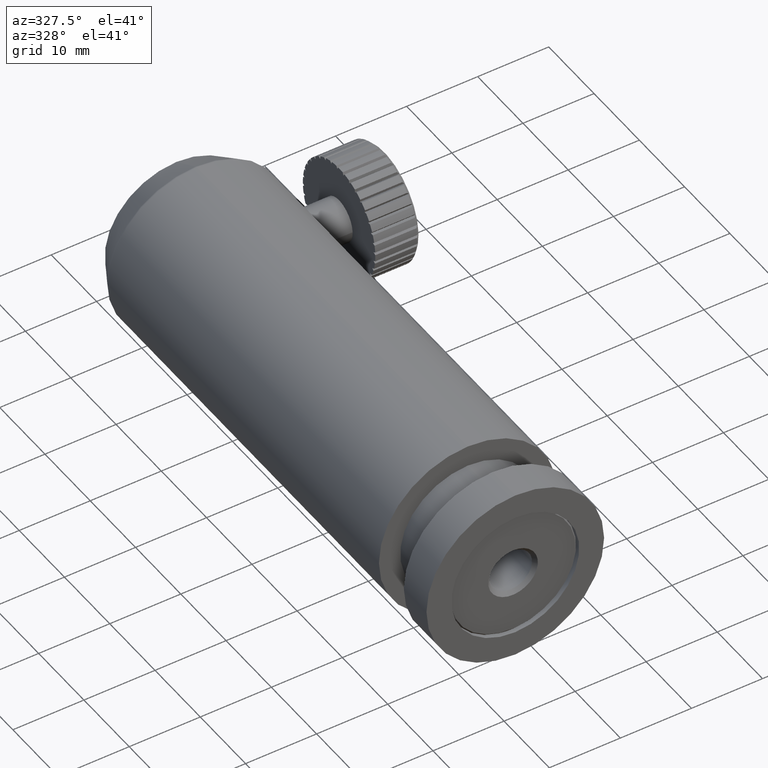
[diagram: clean part render]
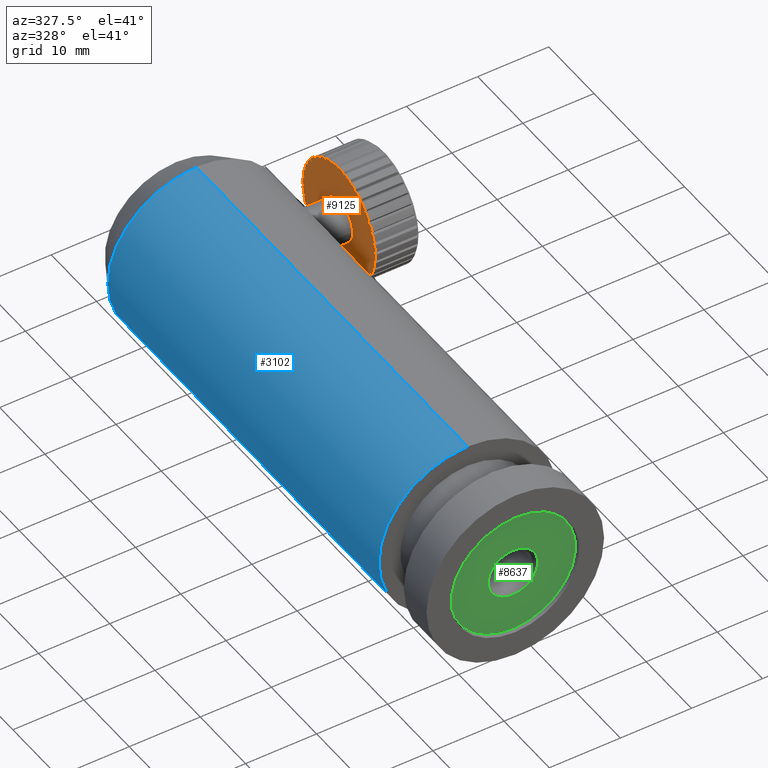
[diagram: same view with three faces highlighted in distinct colors, each labeled with its STEP entity id]
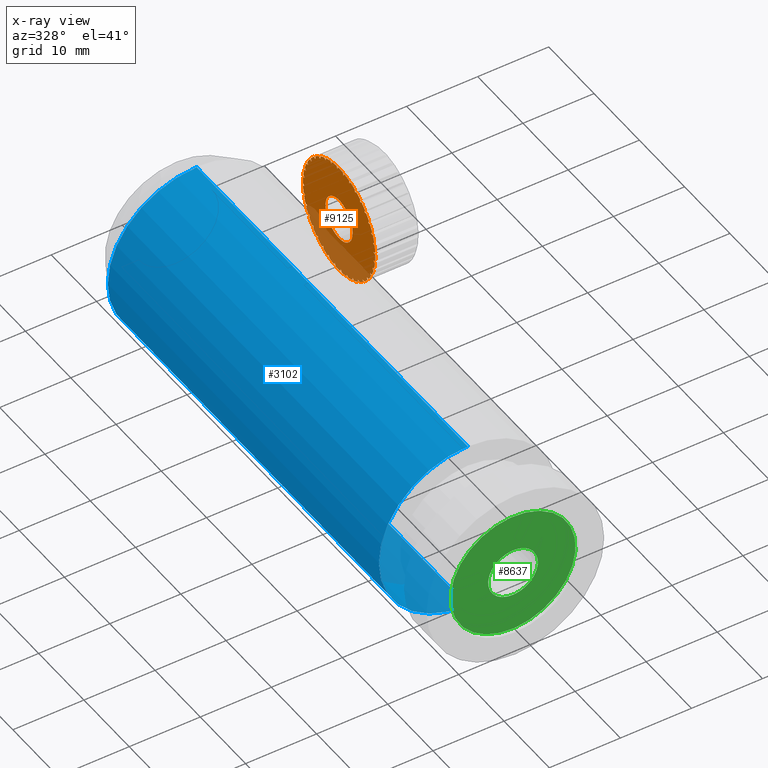
[diagram: x-ray of the same camera — body ghosted, the three highlighted faces saturated]
A machine part, auxiliary view with three faces highlighted in distinct colors.
The next image is the same camera in x-ray (body ghosted, the three faces saturated) — at least one of them is partly hidden behind the body in this view.
Their STEP definitions:

[orange] entity #9125 — the highlighted planar face has unit normal (1, 0, -0).
#6 = VERTEX_POINT ( 'NONE', #2028 ) ;
#7 = CARTESIAN_POINT ( 'NONE',  ( 13.73128916436950142, 53.68638794039017625, 1.854766340514400647E-15 ) ) ;
#8 = CARTESIAN_POINT ( 'NONE',  ( 13.73128916436950497, 50.26705795071387683, 8.181613986353811541 ) ) ;
#41 = CARTESIAN_POINT ( 'NONE',  ( 13.73128916436950142, 60.29445245982830670, -4.509266382344577551 ) ) ;
#44 = VERTEX_POINT ( 'NONE', #6202 ) ;
#59 = DIRECTION ( 'NONE',  ( 1.000000000000000000, 1.264548628736567753E-17, -2.220446049250312588E-16 ) ) ;
#61 = ORIENTED_EDGE ( 'NONE', *, *, #2197, .T. ) ;
#63 = VERTEX_POINT ( 'NONE', #5551 ) ;
#67 = EDGE_CURVE ( 'NONE', #3845, #2579, #4023, .T. ) ;
#70 = DIRECTION ( 'NONE',  ( 0.0000000000000000000, 0.9987437986324323447, -0.05010813001160042968 ) ) ;
#76 = CARTESIAN_POINT ( 'NONE',  ( 13.73128916436950320, 46.22863664251015337, 1.704243403674714941 ) ) ;
#94 = VECTOR ( 'NONE', #3965, 1000.000000000000227 ) ;
#112 = EDGE_CURVE ( 'NONE', #4675, #2983, #4952, .T. ) ;
#115 = EDGE_CURVE ( 'NONE', #6, #7673, #7576, .T. ) ;
#150 = VECTOR ( 'NONE', #4785, 1000.000000000000227 ) ;
#169 = ORIENTED_EDGE ( 'NONE', *, *, #2413, .F. ) ;
#173 = DIRECTION ( 'NONE',  ( 0.0000000000000000000, 0.9987437986324323447, -0.05010813001160042968 ) ) ;
#181 = FACE_OUTER_BOUND ( 'NONE', #7310, .T. ) ;
#185 = AXIS2_PLACEMENT_3D ( 'NONE', #2869, #2258, #4353 ) ;
#197 = CARTESIAN_POINT ( 'NONE',  ( 13.73128916436950142, 53.68638794039017625, 1.854766340514400647E-15 ) ) ;
#200 = VERTEX_POINT ( 'NONE', #2871 ) ;
#219 = DIRECTION ( 'NONE',  ( 1.000000000000000000, 1.264548628736567753E-17, -2.220446049250312588E-16 ) ) ;
#222 = CARTESIAN_POINT ( 'NONE',  ( 13.73128916436950142, 53.68638794039017625, 1.854766340514400647E-15 ) ) ;
#248 = CARTESIAN_POINT ( 'NONE',  ( 13.73128916436950497, 55.66362111099382304, 7.751809400976311437 ) ) ;
#256 = DIRECTION ( 'NONE',  ( -6.247480880464230386E-17, 0.9748694507032732437, -0.2227769155130266132 ) ) ;
#272 = ORIENTED_EDGE ( 'NONE', *, *, #6504, .T. ) ;
#273 = CARTESIAN_POINT ( 'NONE',  ( 13.73128916436950142, 58.99046617701177553, -1.580309798677999034 ) ) ;
#307 = CARTESIAN_POINT ( 'NONE',  ( 13.73128916436950142, 60.97708700144661975, -3.293282132024321296 ) ) ;
#336 = ORIENTED_EDGE ( 'NONE', *, *, #502, .F. ) ;
#347 = CARTESIAN_POINT ( 'NONE',  ( 13.73128916436950142, 50.69015654449287922, 0.1503243900348039952 ) ) ;
#368 = LINE ( 'NONE', #6056, #7917 ) ;
#389 = VECTOR ( 'NONE', #4625, 1000.000000000000114 ) ;
#415 = CARTESIAN_POINT ( 'NONE',  ( 13.73128916436950320, 52.40293725358411336, 5.383621395913443131 ) ) ;
#418 = LINE ( 'NONE', #2578, #4060 ) ;
#419 = VERTEX_POINT ( 'NONE', #505 ) ;
#432 = DIRECTION ( 'NONE',  ( 1.000000000000000000, 1.264548628736567753E-17, -2.220446049250312588E-16 ) ) ;
#443 = EDGE_CURVE ( 'NONE', #6432, #7613, #418, .T. ) ;
#446 = EDGE_CURVE ( 'NONE', #7613, #732, #6798, .T. ) ;
#479 = ORIENTED_EDGE ( 'NONE', *, *, #8362, .F. ) ;
#495 = CARTESIAN_POINT ( 'NONE',  ( 13.73128916436950142, 55.93934550751586698, -7.310723780907816938 ) ) ;
#502 = EDGE_CURVE ( 'NONE', #2705, #1655, #3187, .T. ) ;
#504 = EDGE_CURVE ( 'NONE', #2189, #4980, #1799, .T. ) ;
#505 = CARTESIAN_POINT ( 'NONE',  ( 13.73128916436950320, 61.14413923827021335, -1.704243403674660762 ) ) ;
#520 = VECTOR ( 'NONE', #3839, 1000.000000000000114 ) ;
#555 = ORIENTED_EDGE ( 'NONE', *, *, #8465, .F. ) ;
#556 = DIRECTION ( 'NONE',  ( 1.000000000000000000, 1.264548628736567753E-17, -2.220446049250312588E-16 ) ) ;
#564 = ORIENTED_EDGE ( 'NONE', *, *, #4622, .T. ) ;
#571 = CARTESIAN_POINT ( 'NONE',  ( 13.73128916436950142, 53.68638794039017625, 1.854766340514400647E-15 ) ) ;
#584 = CARTESIAN_POINT ( 'NONE',  ( 13.73128916436950497, 48.91336371414358553, 7.342957755619469395 ) ) ;
#591 = EDGE_CURVE ( 'NONE', #935, #6474, #4178, .T. ) ;
#609 = ORIENTED_EDGE ( 'NONE', *, *, #746, .T. ) ;
#615 = EDGE_CURVE ( 'NONE', #2575, #63, #7073, .T. ) ;
#617 = VECTOR ( 'NONE', #7705, 1000.000000000000114 ) ;
#618 = CARTESIAN_POINT ( 'NONE',  ( 13.73128916436950142, 54.87781068193845613, -7.910784528156582951 ) ) ;
#623 = VECTOR ( 'NONE', #7215, 1000.000000000000114 ) ;
#658 = LINE ( 'NONE', #5516, #1498 ) ;
#663 = VECTOR ( 'NONE', #3021, 1000.000000000000114 ) ;
#669 = ORIENTED_EDGE ( 'NONE', *, *, #1017, .F. ) ;
#671 = EDGE_CURVE ( 'NONE', #6622, #5121, #6377, .T. ) ;
#677 = DIRECTION ( 'NONE',  ( -2.428612866367270163E-17, 0.9987437986324328998, -0.05010813001158871682 ) ) ;
#678 = AXIS2_PLACEMENT_3D ( 'NONE', #5600, #9118, #1346 ) ;
#682 = CARTESIAN_POINT ( 'NONE',  ( 13.73128916436950142, 45.77560341223359330, -1.191422741548251008 ) ) ;
#695 = LINE ( 'NONE', #6161, #2386 ) ;
#717 = ORIENTED_EDGE ( 'NONE', *, *, #4056, .T. ) ;
#718 = VERTEX_POINT ( 'NONE', #41 ) ;
#725 = CARTESIAN_POINT ( 'NONE',  ( 13.73128916436950497, 60.49482342406660962, 3.488223941293862040 ) ) ;
#727 = VECTOR ( 'NONE', #8990, 1000.000000000000114 ) ;
#730 = DIRECTION ( 'NONE',  ( 0.0000000000000000000, 0.9987437986324323447, -0.05010813001160042968 ) ) ;
#731 = CARTESIAN_POINT ( 'NONE',  ( 13.73128916436950142, 53.68638794039017625, 1.854766340514400647E-15 ) ) ;
#732 = VERTEX_POINT ( 'NONE', #8407 ) ;
#734 = EDGE_CURVE ( 'NONE', #8965, #2169, #2018, .T. ) ;
#738 = VERTEX_POINT ( 'NONE', #7809 ) ;
#746 = EDGE_CURVE ( 'NONE', #3933, #9133, #9150, .T. ) ;
#763 = AXIS2_PLACEMENT_3D ( 'NONE', #4937, #1968, #7115 ) ;
#764 = DIRECTION ( 'NONE',  ( 1.000000000000000000, 1.264548628736567753E-17, -2.220446049250312588E-16 ) ) ;
#775 = VECTOR ( 'NONE', #4204, 1000.000000000000000 ) ;
#777 = CARTESIAN_POINT ( 'NONE',  ( 13.73128916436950142, 53.68638794039017625, 1.854766340514400647E-15 ) ) ;
#794 = EDGE_CURVE ( 'NONE', #6817, #8379, #2431, .T. ) ;
#797 = ORIENTED_EDGE ( 'NONE', *, *, #7716, .T. ) ;
#819 = CARTESIAN_POINT ( 'NONE',  ( 13.73128916436950142, 49.67867116652157478, -2.460774081593961604 ) ) ;
#842 = EDGE_CURVE ( 'NONE', #9106, #6280, #5175, .T. ) ;
#858 = ORIENTED_EDGE ( 'NONE', *, *, #3768, .F. ) ;
#868 = DIRECTION ( 'NONE',  ( 1.000000000000000000, 1.264548628736567753E-17, -2.220446049250312588E-16 ) ) ;
#870 = ORIENTED_EDGE ( 'NONE', *, *, #1278, .T. ) ;
#871 = CARTESIAN_POINT ( 'NONE',  ( 13.73128916436950142, 56.23340361061212178, -7.583713547836826940 ) ) ;
#879 = EDGE_CURVE ( 'NONE', #7671, #2729, #7350, .T. ) ;
#888 = ORIENTED_EDGE ( 'NONE', *, *, #5081, .T. ) ;
#892 = VERTEX_POINT ( 'NONE', #4572 ) ;
#910 = EDGE_CURVE ( 'NONE', #7876, #5738, #6652, .T. ) ;
#919 = DIRECTION ( 'NONE',  ( 1.857068583196323605E-16, -0.6035950844617278266, 0.7972910221579317946 ) ) ;
#935 = VERTEX_POINT ( 'NONE', #5309 ) ;
#952 = CARTESIAN_POINT ( 'NONE',  ( 13.73128916436950320, 46.86054363571825832, 4.172271507030423265 ) ) ;
#954 = DIRECTION ( 'NONE',  ( 6.247480880464374600E-17, -0.9748694507032718004, 0.2227769155130331913 ) ) ;
#966 = EDGE_CURVE ( 'NONE', #6543, #2634, #6023, .T. ) ;
#968 = EDGE_CURVE ( 'NONE', #5252, #983, #7968, .T. ) ;
#971 = VECTOR ( 'NONE', #3803, 1000.000000000000000 ) ;
#983 = VERTEX_POINT ( 'NONE', #6629 ) ;
#987 = ORIENTED_EDGE ( 'NONE', *, *, #6831, .F. ) ;
#1017 = EDGE_CURVE ( 'NONE', #5028, #718, #1847, .T. ) ;
#1019 = CIRCLE ( 'NONE', #3372, 7.999999999999995559 ) ;
#1025 = VECTOR ( 'NONE', #8760, 1000.000000000000114 ) ;
#1026 = CARTESIAN_POINT ( 'NONE',  ( 13.73128916436950497, 57.90744801025196864, 7.798286791765123738 ) ) ;
#1061 = EDGE_CURVE ( 'NONE', #4400, #6730, #5196, .T. ) ;
#1078 = EDGE_CURVE ( 'NONE', #4277, #3242, #7368, .T. ) ;
#1079 = CIRCLE ( 'NONE', #6396, 7.999999999999995559 ) ;
#1082 = ORIENTED_EDGE ( 'NONE', *, *, #8131, .T. ) ;
#1084 = CARTESIAN_POINT ( 'NONE',  ( 13.73128916436950142, 60.09504946131578862, 0.05422937272354726862 ) ) ;
#1086 = DIRECTION ( 'NONE',  ( 2.003473315269984773E-16, 0.3886767371671687177, 0.9213741878222352355 ) ) ;
#1113 = DIRECTION ( 'NONE',  ( 1.000000000000000000, 1.264548628736567753E-17, -2.220446049250312588E-16 ) ) ;
#1114 = DIRECTION ( 'NONE',  ( 1.000000000000000000, 1.264548628736567753E-17, -2.220446049250312588E-16 ) ) ;
#1130 = EDGE_CURVE ( 'NONE', #5071, #2729, #4956, .T. ) ;
#1133 = AXIS2_PLACEMENT_3D ( 'NONE', #1934, #7533, #5323 ) ;
#1141 = ORIENTED_EDGE ( 'NONE', *, *, #1061, .T. ) ;
#1169 = ORIENTED_EDGE ( 'NONE', *, *, #5823, .T. ) ;
#1173 = CARTESIAN_POINT ( 'NONE',  ( 13.73128916436950142, 53.68638794039017625, 1.854766340514400647E-15 ) ) ;
#1177 = DIRECTION ( 'NONE',  ( -2.044393329701931931E-16, 0.4559769857900449197, -0.8899915664936522974 ) ) ;
#1202 = ORIENTED_EDGE ( 'NONE', *, *, #7791, .F. ) ;
#1205 = DIRECTION ( 'NONE',  ( 0.0000000000000000000, 0.9987437986324323447, -0.05010813001160042968 ) ) ;
#1221 = ORIENTED_EDGE ( 'NONE', *, *, #671, .T. ) ;
#1230 = EDGE_CURVE ( 'NONE', #3966, #3029, #1478, .T. ) ;
#1260 = EDGE_LOOP ( 'NONE', ( #870, #6294 ) ) ;
#1278 = EDGE_CURVE ( 'NONE', #7526, #2268, #3997, .T. ) ;
#1289 = DIRECTION ( 'NONE',  ( 2.169600219397498266E-16, -0.2945042571406117360, 0.9556501674389308310 ) ) ;
#1292 = CARTESIAN_POINT ( 'NONE',  ( 13.73128916436950497, 48.91336371414362105, 7.342957755619497817 ) ) ;
#1297 = CARTESIAN_POINT ( 'NONE',  ( 13.73128916436950142, 54.63562415772214109, -7.590879435461039826 ) ) ;
#1301 = DIRECTION ( 'NONE',  ( 0.0000000000000000000, 0.9987437986324323447, -0.05010813001160042968 ) ) ;
#1319 = DIRECTION ( 'NONE',  ( 2.428612866367320699E-17, -0.9987437986324327888, 0.05010813001159098584 ) ) ;
#1321 = AXIS2_PLACEMENT_3D ( 'NONE', #571, #4174, #6263 ) ;
#1322 = LINE ( 'NONE', #6965, #2337 ) ;
#1334 = DIRECTION ( 'NONE',  ( 0.0000000000000000000, 0.9987437986324323447, -0.05010813001160042968 ) ) ;
#1344 = EDGE_CURVE ( 'NONE', #7923, #732, #8874, .T. ) ;
#1346 = DIRECTION ( 'NONE',  ( 0.0000000000000000000, 0.9987437986324323447, -0.05010813001160042968 ) ) ;
#1349 = ORIENTED_EDGE ( 'NONE', *, *, #7339, .F. ) ;
#1351 = CARTESIAN_POINT ( 'NONE',  ( 13.73128916436950497, 48.07990756315706449, 5.204793730754381897 ) ) ;
#1352 = DIRECTION ( 'NONE',  ( -5.312223170843901445E-17, -0.9556501674389311640, -0.2945042571406105147 ) ) ;
#1370 = CARTESIAN_POINT ( 'NONE',  ( 13.73128916436950142, 53.68638794039017625, 1.854766340514400647E-15 ) ) ;
#1390 = CARTESIAN_POINT ( 'NONE',  ( 13.73128916436950142, 47.58711162088200552, -4.617502396132230125 ) ) ;
#1399 = EDGE_CURVE ( 'NONE', #1518, #3617, #6429, .T. ) ;
#1408 = CIRCLE ( 'NONE', #5696, 7.999999999999995559 ) ;
#1419 = EDGE_CURVE ( 'NONE', #2476, #6627, #7621, .T. ) ;
#1429 = DIRECTION ( 'NONE',  ( 1.000000000000000000, 1.264548628736567753E-17, -2.220446049250312588E-16 ) ) ;
#1436 = DIRECTION ( 'NONE',  ( 1.000000000000000000, 1.264548628736567753E-17, -2.220446049250312588E-16 ) ) ;
#1439 = CARTESIAN_POINT ( 'NONE',  ( 13.73128916436950142, 50.39310580836583142, -7.290699061056435504 ) ) ;
#1442 = VERTEX_POINT ( 'NONE', #7948 ) ;
#1447 = CARTESIAN_POINT ( 'NONE',  ( 13.73128916436950320, 52.40293725358412047, 5.383621395913395169 ) ) ;
#1452 = CARTESIAN_POINT ( 'NONE',  ( 13.73128916436950320, 60.89555943965078910, 3.468118552507755137 ) ) ;
#1478 = LINE ( 'NONE', #7030, #2370 ) ;
#1482 = DIRECTION ( 'NONE',  ( 0.0000000000000000000, 0.9987437986324323447, -0.05010813001160042968 ) ) ;
#1498 = VECTOR ( 'NONE', #1352, 1000.000000000000114 ) ;
#1509 = CARTESIAN_POINT ( 'NONE',  ( 13.73128916436950142, 52.10031144072101483, -7.841196422561876211 ) ) ;
#1510 = VECTOR ( 'NONE', #3090, 1000.000000000000227 ) ;
#1518 = VERTEX_POINT ( 'NONE', #4533 ) ;
#1536 = CARTESIAN_POINT ( 'NONE',  ( 13.73128916436950497, 50.21826938788250061, 7.209171499260651927 ) ) ;
#1545 = LINE ( 'NONE', #5201, #1025 ) ;
#1562 = AXIS2_PLACEMENT_3D ( 'NONE', #7571, #3326, #7617 ) ;
#1572 = DIRECTION ( 'NONE',  ( 1.000000000000000000, 1.264548628736567753E-17, -2.220446049250312588E-16 ) ) ;
#1593 = CARTESIAN_POINT ( 'NONE',  ( 13.73128916436950320, 53.18423521360531225, 4.038354092180776789 ) ) ;
#1632 = CARTESIAN_POINT ( 'NONE',  ( 13.73128916436950497, 55.12780201304349248, 8.310618066724263286 ) ) ;
#1640 = ORIENTED_EDGE ( 'NONE', *, *, #966, .T. ) ;
#1642 = EDGE_CURVE ( 'NONE', #8426, #3548, #3055, .T. ) ;
#1643 = VERTEX_POINT ( 'NONE', #4286 ) ;
#1645 = CARTESIAN_POINT ( 'NONE',  ( 13.73128916436950142, 59.68402498855785154, -5.294180752339923579 ) ) ;
#1647 = DIRECTION ( 'NONE',  ( 1.000000000000000000, 1.264548628736567753E-17, -2.220446049250312588E-16 ) ) ;
#1655 = VERTEX_POINT ( 'NONE', #3544 ) ;
#1658 = CIRCLE ( 'NONE', #4471, 7.999999999999995559 ) ;
#1666 = CARTESIAN_POINT ( 'NONE',  ( 13.73128916436950142, 48.09814908495397390, -5.724647281238646634 ) ) ;
#1672 = VERTEX_POINT ( 'NONE', #6370 ) ;
#1689 = DIRECTION ( 'NONE',  ( 0.0000000000000000000, 0.9987437986324323447, -0.05010813001160042968 ) ) ;
#1692 = AXIS2_PLACEMENT_3D ( 'NONE', #7338, #1647, #1689 ) ;
#1705 = VECTOR ( 'NONE', #8180, 1000.000000000000000 ) ;
#1706 = LINE ( 'NONE', #2210, #6584 ) ;
#1764 = VERTEX_POINT ( 'NONE', #8256 ) ;
#1765 = DIRECTION ( 'NONE',  ( 1.000000000000000000, 1.264548628736567753E-17, -2.220446049250312588E-16 ) ) ;
#1766 = DIRECTION ( 'NONE',  ( -1.241232669358730058E-16, -0.7972910221579296852, -0.6035950844617304911 ) ) ;
#1772 = LINE ( 'NONE', #1816, #7607 ) ;
#1776 = ORIENTED_EDGE ( 'NONE', *, *, #7732, .T. ) ;
#1781 = DIRECTION ( 'NONE',  ( 1.801532043065187320E-16, 0.5427668128423953631, 0.8398834364820562115 ) ) ;
#1792 = VECTOR ( 'NONE', #3020, 1000.000000000000000 ) ;
#1799 = LINE ( 'NONE', #6193, #5814 ) ;
#1815 = CARTESIAN_POINT ( 'NONE',  ( 13.73128916436950142, 60.51223224506212262, -4.172271507030373527 ) ) ;
#1816 = CARTESIAN_POINT ( 'NONE',  ( 13.73128916436950320, 55.50224223571792237, 5.228125684998448541 ) ) ;
#1824 = DIRECTION ( 'NONE',  ( 1.000000000000000000, 1.264548628736567753E-17, -2.220446049250312588E-16 ) ) ;
#1827 = VECTOR ( 'NONE', #5506, 1000.000000000000227 ) ;
#1839 = DIRECTION ( 'NONE',  ( 6.247480880464277225E-17, -0.9748694507032727996, 0.2227769155130287504 ) ) ;
#1847 = CIRCLE ( 'NONE', #3036, 7.999999999999995559 ) ;
#1856 = CARTESIAN_POINT ( 'NONE',  ( 13.73128916436950320, 52.65204820585036316, 4.587738455246155311 ) ) ;
#1869 = EDGE_CURVE ( 'NONE', #2737, #3945, #7056, .T. ) ;
#1872 = CARTESIAN_POINT ( 'NONE',  ( 13.73128916436950497, 58.98056869273008118, 5.997637048167694829 ) ) ;
#1877 = CARTESIAN_POINT ( 'NONE',  ( 13.73128916436950320, 60.65934087095507010, 3.742800078567717126 ) ) ;
#1883 = DIRECTION ( 'NONE',  ( -9.876522349386318500E-17, 0.9213741878222356796, -0.3886767371671676630 ) ) ;
#1894 = CARTESIAN_POINT ( 'NONE',  ( 13.73128916436950142, 53.08528096056760859, -7.977384934852309151 ) ) ;
#1896 = ORIENTED_EDGE ( 'NONE', *, *, #1419, .T. ) ;
#1902 = AXIS2_PLACEMENT_3D ( 'NONE', #5861, #219, #3770 ) ;
#1912 = EDGE_CURVE ( 'NONE', #4980, #6474, #4926, .T. ) ;
#1927 = VERTEX_POINT ( 'NONE', #3534 ) ;
#1934 = CARTESIAN_POINT ( 'NONE',  ( 13.73128916436950142, 53.68638794039017625, 1.854766340514400647E-15 ) ) ;
#1937 = AXIS2_PLACEMENT_3D ( 'NONE', #8971, #4727, #9064 ) ;
#1968 = DIRECTION ( 'NONE',  ( 1.000000000000000000, 1.264548628736567753E-17, -2.220446049250312588E-16 ) ) ;
#1979 = CARTESIAN_POINT ( 'NONE',  ( 13.73128916436950142, 53.68638794039017625, 1.854766340514400647E-15 ) ) ;
#1984 = ORIENTED_EDGE ( 'NONE', *, *, #2085, .F. ) ;
#1987 = CARTESIAN_POINT ( 'NONE',  ( 13.73128916436950142, 53.68638794039017625, 1.854766340514400647E-15 ) ) ;
#1998 = DIRECTION ( 'NONE',  ( 0.0000000000000000000, 0.9987437986324323447, -0.05010813001160042968 ) ) ;
#2018 = LINE ( 'NONE', #3509, #617 ) ;
#2020 = VERTEX_POINT ( 'NONE', #6220 ) ;
#2028 = CARTESIAN_POINT ( 'NONE',  ( 13.73128916436950142, 46.66017267147989855, -3.825218816608012773 ) ) ;
#2032 = CIRCLE ( 'NONE', #5583, 7.999999999999995559 ) ;
#2052 = VECTOR ( 'NONE', #1086, 1000.000000000000000 ) ;
#2056 = CARTESIAN_POINT ( 'NONE',  ( 13.73128916436950497, 54.23423258186731033, 7.894966196812061021 ) ) ;
#2075 = DIRECTION ( 'NONE',  ( 1.000000000000000000, 1.264548628736567753E-17, -2.220446049250312588E-16 ) ) ;
#2085 = EDGE_CURVE ( 'NONE', #1672, #2496, #6440, .T. ) ;
#2098 = CARTESIAN_POINT ( 'NONE',  ( 13.73128916436950142, 53.68638794039017625, 1.854766340514400647E-15 ) ) ;
#2111 = DIRECTION ( 'NONE',  ( 1.000000000000000000, 1.264548628736567753E-17, -2.220446049250312588E-16 ) ) ;
#2130 = EDGE_CURVE ( 'NONE', #6189, #8790, #6454, .T. ) ;
#2150 = VECTOR ( 'NONE', #5490, 1000.000000000000227 ) ;
#2153 = LINE ( 'NONE', #5626, #3485 ) ;
#2156 = CARTESIAN_POINT ( 'NONE',  ( 13.73128916436950142, 53.68638794039017625, 1.854766340514400647E-15 ) ) ;
#2166 = VERTEX_POINT ( 'NONE', #1452 ) ;
#2167 = CARTESIAN_POINT ( 'NONE',  ( 13.73128916436950142, 53.68638794039017625, 1.854766340514400647E-15 ) ) ;
#2169 = VERTEX_POINT ( 'NONE', #7151 ) ;
#2189 = VERTEX_POINT ( 'NONE', #2979 ) ;
#2197 = EDGE_CURVE ( 'NONE', #4728, #4262, #7931, .T. ) ;
#2210 = CARTESIAN_POINT ( 'NONE',  ( 13.73128916436950497, 55.12780201304352801, 8.310618066724270392 ) ) ;
#2248 = ORIENTED_EDGE ( 'NONE', *, *, #4398, .F. ) ;
#2258 = DIRECTION ( 'NONE',  ( 1.000000000000000000, 1.264548628736567753E-17, -2.220446049250312588E-16 ) ) ;
#2268 = VERTEX_POINT ( 'NONE', #347 ) ;
#2279 = ORIENTED_EDGE ( 'NONE', *, *, #1912, .T. ) ;
#2328 = LINE ( 'NONE', #4427, #7736 ) ;
#2337 = VECTOR ( 'NONE', #677, 1000.000000000000114 ) ;
#2340 = EDGE_CURVE ( 'NONE', #1672, #2645, #8108, .T. ) ;
#2345 = EDGE_CURVE ( 'NONE', #4629, #2862, #1772, .T. ) ;
#2367 = ORIENTED_EDGE ( 'NONE', *, *, #504, .T. ) ;
#2369 = ORIENTED_EDGE ( 'NONE', *, *, #5134, .T. ) ;
#2370 = VECTOR ( 'NONE', #2772, 999.9999999999998863 ) ;
#2386 = VECTOR ( 'NONE', #3336, 1000.000000000000114 ) ;
#2404 = EDGE_CURVE ( 'NONE', #3111, #718, #5332, .T. ) ;
#2413 = EDGE_CURVE ( 'NONE', #4277, #200, #7474, .T. ) ;
#2420 = LINE ( 'NONE', #5256, #3022 ) ;
#2422 = CARTESIAN_POINT ( 'NONE',  ( 13.73128916436950142, 57.42767958184639809, -2.849550784555860972 ) ) ;
#2431 = LINE ( 'NONE', #6515, #9040 ) ;
#2436 = CARTESIAN_POINT ( 'NONE',  ( 13.73128916436950320, 46.39568887933375407, 3.293282132024371478 ) ) ;
#2438 = VECTOR ( 'NONE', #2551, 1000.000000000000114 ) ;
#2476 = VERTEX_POINT ( 'NONE', #7542 ) ;
#2496 = VERTEX_POINT ( 'NONE', #8244 ) ;
#2497 = CARTESIAN_POINT ( 'NONE',  ( 13.73128916436950320, 60.65934087095505589, 3.742800078567835698 ) ) ;
#2516 = VECTOR ( 'NONE', #4808, 1000.000000000000114 ) ;
#2551 = DIRECTION ( 'NONE',  ( 2.044393329701940313E-16, -0.4559769857900368151, 0.8899915664936565163 ) ) ;
#2563 = LINE ( 'NONE', #5390, #7384 ) ;
#2574 = LINE ( 'NONE', #6100, #94 ) ;
#2575 = VERTEX_POINT ( 'NONE', #6947 ) ;
#2578 = CARTESIAN_POINT ( 'NONE',  ( 13.73128916436950320, 47.81707823213572794, 6.057660499598592985 ) ) ;
#2579 = VERTEX_POINT ( 'NONE', #9022 ) ;
#2583 = AXIS2_PLACEMENT_3D ( 'NONE', #7575, #8967, #6802 ) ;
#2591 = ORIENTED_EDGE ( 'NONE', *, *, #5622, .T. ) ;
#2593 = DIRECTION ( 'NONE',  ( -1.613317747512323205E-16, 0.7328732519259019140, -0.6803651935626582326 ) ) ;
#2597 = CIRCLE ( 'NONE', #8949, 7.999999999999995559 ) ;
#2598 = EDGE_CURVE ( 'NONE', #6817, #7335, #3484, .T. ) ;
#2602 = VERTEX_POINT ( 'NONE', #1536 ) ;
#2610 = AXIS2_PLACEMENT_3D ( 'NONE', #1370, #3503, #6323 ) ;
#2618 = CARTESIAN_POINT ( 'NONE',  ( 13.73128916436950142, 48.48159420963581567, -5.606480377233125090 ) ) ;
#2630 = VECTOR ( 'NONE', #4003, 1000.000000000000000 ) ;
#2634 = VERTEX_POINT ( 'NONE', #1439 ) ;
#2636 = ORIENTED_EDGE ( 'NONE', *, *, #8588, .F. ) ;
#2644 = ORIENTED_EDGE ( 'NONE', *, *, #4115, .T. ) ;
#2645 = VERTEX_POINT ( 'NONE', #4961 ) ;
#2647 = CARTESIAN_POINT ( 'NONE',  ( 13.73128916436950497, 55.47754706518355761, 6.153505692231700408 ) ) ;
#2650 = DIRECTION ( 'NONE',  ( -1.464047320736684706E-17, -0.9922718216288942683, -0.1240831656643066744 ) ) ;
#2662 = DIRECTION ( 'NONE',  ( 2.228884904297352663E-16, -0.1240831656643078817, 0.9922718216288941573 ) ) ;
#2668 = CARTESIAN_POINT ( 'NONE',  ( 13.73128916436950142, 53.68638794039017625, 1.854766340514400647E-15 ) ) ;
#2705 = VERTEX_POINT ( 'NONE', #6485 ) ;
#2707 = LINE ( 'NONE', #7650, #3286 ) ;
#2729 = VERTEX_POINT ( 'NONE', #2436 ) ;
#2737 = VERTEX_POINT ( 'NONE', #5272 ) ;
#2743 = VECTOR ( 'NONE', #4713, 1000.000000000000000 ) ;
#2745 = CARTESIAN_POINT ( 'NONE',  ( 13.73128916436950320, 61.32677799992828938, -0.3833271945886617682 ) ) ;
#2772 = DIRECTION ( 'NONE',  ( 1.320547068448352523E-16, -0.8398834364820579879, 0.5427668128423928096 ) ) ;
#2795 = AXIS2_PLACEMENT_3D ( 'NONE', #2977, #5848, #8621 ) ;
#2796 = DIRECTION ( 'NONE',  ( 1.613317747512334052E-16, -0.7328732519258973621, 0.6803651935626632286 ) ) ;
#2806 = VECTOR ( 'NONE', #4523, 1000.000000000000227 ) ;
#2815 = CARTESIAN_POINT ( 'NONE',  ( 13.73128916436950142, 61.66377287524249340, -0.6011069798224841776 ) ) ;
#2816 = DIRECTION ( 'NONE',  ( -1.464047320736779924E-17, -0.9922718216288937132, -0.1240831656643108932 ) ) ;
#2817 = VERTEX_POINT ( 'NONE', #7441 ) ;
#2831 = VECTOR ( 'NONE', #4364, 999.9999999999998863 ) ;
#2857 = DIRECTION ( 'NONE',  ( 1.000000000000000000, 1.264548628736567753E-17, -2.220446049250312588E-16 ) ) ;
#2862 = VERTEX_POINT ( 'NONE', #3230 ) ;
#2869 = CARTESIAN_POINT ( 'NONE',  ( 13.73128916436950142, 53.68638794039017625, 1.854766340514400647E-15 ) ) ;
#2871 = CARTESIAN_POINT ( 'NONE',  ( 13.73128916436950497, 54.28749492021274392, 7.977384934852312703 ) ) ;
#2902 = AXIS2_PLACEMENT_3D ( 'NONE', #731, #2857, #5674 ) ;
#2918 = DIRECTION ( 'NONE',  ( 0.0000000000000000000, 0.9987437986324323447, -0.05010813001160042968 ) ) ;
#2923 = EDGE_CURVE ( 'NONE', #3121, #2476, #8223, .T. ) ;
#2941 = ORIENTED_EDGE ( 'NONE', *, *, #2598, .F. ) ;
#2955 = VECTOR ( 'NONE', #8384, 1000.000000000000000 ) ;
#2977 = CARTESIAN_POINT ( 'NONE',  ( 13.73128916436950142, 53.68638794039017625, 1.854766340514400647E-15 ) ) ;
#2979 = CARTESIAN_POINT ( 'NONE',  ( 13.73128916436950142, 45.84519151782831159, 1.586076499669195172 ) ) ;
#2983 = VERTEX_POINT ( 'NONE', #6232 ) ;
#2991 = EDGE_CURVE ( 'NONE', #2817, #738, #8358, .T. ) ;
#3013 = CARTESIAN_POINT ( 'NONE',  ( 13.73128916436950497, 53.03698081737758940, 7.194834054647980537 ) ) ;
#3018 = VERTEX_POINT ( 'NONE', #6620 ) ;
#3020 = DIRECTION ( 'NONE',  ( 1.464047320736633553E-17, 0.9922718216288946014, 0.1240831656643044123 ) ) ;
#3021 = DIRECTION ( 'NONE',  ( -2.044393329701940313E-16, 0.4559769857900368151, -0.8899915664936565163 ) ) ;
#3022 = VECTOR ( 'NONE', #8070, 1000.000000000000114 ) ;
#3029 = VERTEX_POINT ( 'NONE', #8047 ) ;
#3036 = AXIS2_PLACEMENT_3D ( 'NONE', #5327, #3201, #8148 ) ;
#3042 = DIRECTION ( 'NONE',  ( 0.0000000000000000000, 0.9987437986324323447, -0.05010813001160042968 ) ) ;
#3052 = DIRECTION ( 'NONE',  ( -2.169600219397496787E-16, 0.2945042571406138454, -0.9556501674389301648 ) ) ;
#3055 = CIRCLE ( 'NONE', #2610, 7.999999999999995559 ) ;
#3077 = LINE ( 'NONE', #819, #4908 ) ;
#3090 = DIRECTION ( 'NONE',  ( -8.998989808019759648E-17, -0.8899915664936516313, -0.4559769857900462520 ) ) ;
#3099 = VERTEX_POINT ( 'NONE', #5187 ) ;
#3110 = ORIENTED_EDGE ( 'NONE', *, *, #4158, .T. ) ;
#3111 = VERTEX_POINT ( 'NONE', #3148 ) ;
#3121 = VERTEX_POINT ( 'NONE', #8000 ) ;
#3123 = ORIENTED_EDGE ( 'NONE', *, *, #115, .F. ) ;
#3132 = AXIS2_PLACEMENT_3D ( 'NONE', #3154, #1765, #6672 ) ;
#3135 = ORIENTED_EDGE ( 'NONE', *, *, #7903, .T. ) ;
#3141 = CARTESIAN_POINT ( 'NONE',  ( 13.73128916436950497, 55.27246444005928794, 7.841196422561891310 ) ) ;
#3148 = CARTESIAN_POINT ( 'NONE',  ( 13.73128916436950142, 60.11149622947794313, -4.152166118244265292 ) ) ;
#3149 = VERTEX_POINT ( 'NONE', #1666 ) ;
#3154 = CARTESIAN_POINT ( 'NONE',  ( 13.73128916436950142, 53.68638794039017625, 1.854766340514400647E-15 ) ) ;
#3160 = EDGE_CURVE ( 'NONE', #63, #3364, #7361, .T. ) ;
#3162 = CARTESIAN_POINT ( 'NONE',  ( 13.73128916436950497, 47.26127965130243780, 4.152166118244313253 ) ) ;
#3178 = CARTESIAN_POINT ( 'NONE',  ( 13.73128916436950497, 57.83855405863442201, 6.425108289087784641 ) ) ;
#3181 = CARTESIAN_POINT ( 'NONE',  ( 13.73128916436950142, 46.37566415948235488, -2.252957567125660976 ) ) ;
#3187 = CIRCLE ( 'NONE', #1562, 7.999999999999995559 ) ;
#3201 = DIRECTION ( 'NONE',  ( 1.000000000000000000, 1.264548628736567753E-17, -2.220446049250312588E-16 ) ) ;
#3206 = EDGE_CURVE ( 'NONE', #4675, #2634, #4370, .T. ) ;
#3213 = DIRECTION ( 'NONE',  ( -2.220446049250316039E-16, -0.05010813001158746088, -0.9987437986324328998 ) ) ;
#3215 = CARTESIAN_POINT ( 'NONE',  ( 13.73128916436950142, 53.68638794039017625, 1.854766340514400647E-15 ) ) ;
#3228 = VECTOR ( 'NONE', #2816, 1000.000000000000114 ) ;
#3230 = CARTESIAN_POINT ( 'NONE',  ( 13.73128916436950497, 58.19565432273473249, 6.608064519438143769 ) ) ;
#3231 = LINE ( 'NONE', #7398, #6739 ) ;
#3242 = VERTEX_POINT ( 'NONE', #4283 ) ;
#3246 = CIRCLE ( 'NONE', #4434, 7.999999999999995559 ) ;
#3260 = CARTESIAN_POINT ( 'NONE',  ( 13.73128916436950497, 55.05266755833555692, 7.093704722564202036 ) ) ;
#3281 = CIRCLE ( 'NONE', #1937, 7.999999999999995559 ) ;
#3286 = VECTOR ( 'NONE', #1319, 1000.000000000000114 ) ;
#3296 = DIRECTION ( 'NONE',  ( 0.0000000000000000000, 0.9987437986324323447, -0.05010813001160042968 ) ) ;
#3306 = CARTESIAN_POINT ( 'NONE',  ( 13.73128916436950142, 56.68261933628747329, -0.1503243900347993600 ) ) ;
#3326 = DIRECTION ( 'NONE',  ( 1.000000000000000000, 1.264548628736567753E-17, -2.220446049250312588E-16 ) ) ;
#3336 = DIRECTION ( 'NONE',  ( -2.144540064596721608E-16, -0.2227769155130299439, -0.9748694507032724665 ) ) ;
#3364 = VERTEX_POINT ( 'NONE', #5077 ) ;
#3372 = AXIS2_PLACEMENT_3D ( 'NONE', #4446, #1436, #3701 ) ;
#3380 = EDGE_CURVE ( 'NONE', #9133, #7143, #2328, .T. ) ;
#3402 = DIRECTION ( 'NONE',  ( 1.000000000000000000, 1.264548628736567753E-17, -2.220446049250312588E-16 ) ) ;
#3429 = EDGE_CURVE ( 'NONE', #7752, #7143, #6125, .T. ) ;
#3438 = EDGE_CURVE ( 'NONE', #3018, #4728, #3767, .T. ) ;
#3459 = CARTESIAN_POINT ( 'NONE',  ( 13.73128916436950320, 60.13253750310725820, 5.439779682568954833 ) ) ;
#3481 = ORIENTED_EDGE ( 'NONE', *, *, #4837, .T. ) ;
#3484 = CIRCLE ( 'NONE', #8211, 7.999999999999995559 ) ;
#3485 = VECTOR ( 'NONE', #7751, 1000.000000000000227 ) ;
#3487 = LINE ( 'NONE', #1447, #2955 ) ;
#3494 = VERTEX_POINT ( 'NONE', #307 ) ;
#3502 = EDGE_CURVE ( 'NONE', #1927, #2602, #2420, .T. ) ;
#3503 = DIRECTION ( 'NONE',  ( 1.000000000000000000, 1.264548628736567753E-17, -2.220446049250312588E-16 ) ) ;
#3506 = ORIENTED_EDGE ( 'NONE', *, *, #7644, .T. ) ;
#3509 = CARTESIAN_POINT ( 'NONE',  ( 13.73128916436950497, 51.71265176016524379, 8.532593647656037561 ) ) ;
#3513 = LINE ( 'NONE', #7128, #5997 ) ;
#3515 = ORIENTED_EDGE ( 'NONE', *, *, #842, .T. ) ;
#3528 = CARTESIAN_POINT ( 'NONE',  ( 13.73128916436950142, 50.76279803713919136, -7.446651736022629642 ) ) ;
#3533 = CIRCLE ( 'NONE', #2795, 7.999999999999995559 ) ;
#3534 = CARTESIAN_POINT ( 'NONE',  ( 13.73128916436950497, 50.19816399909638704, 6.808435483676470668 ) ) ;
#3537 = ORIENTED_EDGE ( 'NONE', *, *, #6842, .T. ) ;
#3538 = ORIENTED_EDGE ( 'NONE', *, *, #591, .F. ) ;
#3544 = CARTESIAN_POINT ( 'NONE',  ( 13.73128916436950142, 49.17712155804557028, -6.608064519438110018 ) ) ;
#3548 = VERTEX_POINT ( 'NONE', #5992 ) ;
#3562 = CARTESIAN_POINT ( 'NONE',  ( 13.73128916436950142, 53.68638794039017625, 1.854766340514400647E-15 ) ) ;
#3566 = CARTESIAN_POINT ( 'NONE',  ( 13.73128916436950142, 61.59717246854675210, 1.191422741548307185 ) ) ;
#3567 = VECTOR ( 'NONE', #5387, 1000.000000000000114 ) ;
#3572 = ORIENTED_EDGE ( 'NONE', *, *, #5584, .T. ) ;
#3579 = CARTESIAN_POINT ( 'NONE',  ( 13.73128916436950142, 53.68638794039017625, 1.854766340514400647E-15 ) ) ;
#3580 = DIRECTION ( 'NONE',  ( -2.228884904297352663E-16, 0.1240831656643099912, -0.9922718216288939352 ) ) ;
#3592 = LINE ( 'NONE', #5625, #9021 ) ;
#3606 = ORIENTED_EDGE ( 'NONE', *, *, #2404, .T. ) ;
#3617 = VERTEX_POINT ( 'NONE', #8207 ) ;
#3624 = VECTOR ( 'NONE', #4494, 1000.000000000000000 ) ;
#3664 = LINE ( 'NONE', #6578, #1792 ) ;
#3665 = EDGE_CURVE ( 'NONE', #4867, #2602, #1408, .T. ) ;
#3673 = CARTESIAN_POINT ( 'NONE',  ( 13.73128916436950497, 56.50424314960461203, 8.292193972951427128 ) ) ;
#3701 = DIRECTION ( 'NONE',  ( 0.0000000000000000000, 0.9987437986324323447, -0.05010813001160042968 ) ) ;
#3704 = ORIENTED_EDGE ( 'NONE', *, *, #67, .T. ) ;
#3716 = VECTOR ( 'NONE', #2662, 1000.000000000000000 ) ;
#3734 = DIRECTION ( 'NONE',  ( 1.000000000000000000, 1.317510786072415822E-17, -2.220711766511247388E-16 ) ) ;
#3751 = VERTEX_POINT ( 'NONE', #1894 ) ;
#3767 = LINE ( 'NONE', #4472, #7449 ) ;
#3768 = EDGE_CURVE ( 'NONE', #3121, #1442, #4375, .T. ) ;
#3770 = DIRECTION ( 'NONE',  ( 0.0000000000000000000, 0.9987437986324323447, -0.05010813001160042274 ) ) ;
#3803 = DIRECTION ( 'NONE',  ( -2.169600219397494322E-16, 0.2945042571406183418, -0.9556501674389287215 ) ) ;
#3805 = CARTESIAN_POINT ( 'NONE',  ( 13.73128916436950497, 53.08402496626719369, 8.413156721897733448 ) ) ;
#3839 = DIRECTION ( 'NONE',  ( -2.220446049250315053E-16, -0.05010813001159217239, -0.9987437986324326777 ) ) ;
#3845 = VERTEX_POINT ( 'NONE', #9060 ) ;
#3873 = VECTOR ( 'NONE', #919, 1000.000000000000227 ) ;
#3901 = EDGE_CURVE ( 'NONE', #3099, #2020, #3513, .T. ) ;
#3933 = VERTEX_POINT ( 'NONE', #4947 ) ;
#3938 = CARTESIAN_POINT ( 'NONE',  ( 13.73128916436950142, 58.99046617701174000, -1.580309798678037225 ) ) ;
#3940 = CARTESIAN_POINT ( 'NONE',  ( 13.73128916436950142, 53.68638794039017625, 1.854766340514400647E-15 ) ) ;
#3945 = VERTEX_POINT ( 'NONE', #5093 ) ;
#3956 = CARTESIAN_POINT ( 'NONE',  ( 13.73128916436950497, 59.17040305804518852, 6.828350243981387457 ) ) ;
#3958 = LINE ( 'NONE', #1877, #4620 ) ;
#3960 = CARTESIAN_POINT ( 'NONE',  ( 13.73128916436950497, 52.52013003929819490, 6.301882720489070167 ) ) ;
#3965 = DIRECTION ( 'NONE',  ( -6.247480880464422671E-17, 0.9748694507032712453, -0.2227769155130353840 ) ) ;
#3966 = VERTEX_POINT ( 'NONE', #7993 ) ;
#3993 = CARTESIAN_POINT ( 'NONE',  ( 13.73128916436950142, 51.98214453671548796, -7.457751297880030883 ) ) ;
#3997 = CIRCLE ( 'NONE', #7990, 2.999999999999999112 ) ;
#4003 = DIRECTION ( 'NONE',  ( -1.613317747512337010E-16, 0.7328732519258960298, -0.6803651935626646718 ) ) ;
#4005 = VECTOR ( 'NONE', #4825, 1000.000000000000114 ) ;
#4011 = LINE ( 'NONE', #3459, #8455 ) ;
#4018 = CIRCLE ( 'NONE', #6834, 7.999999999999995559 ) ;
#4023 = LINE ( 'NONE', #1856, #1827 ) ;
#4054 = CARTESIAN_POINT ( 'NONE',  ( 13.73128916436950497, 51.43343037326454237, 7.310723780907834701 ) ) ;
#4056 = EDGE_CURVE ( 'NONE', #8764, #6984, #1706, .T. ) ;
#4060 = VECTOR ( 'NONE', #1289, 1000.000000000000000 ) ;
#4076 = ORIENTED_EDGE ( 'NONE', *, *, #8026, .T. ) ;
#4079 = CARTESIAN_POINT ( 'NONE',  ( 13.73128916436950497, 58.89118167114450131, 5.606480377233165946 ) ) ;
#4082 = LINE ( 'NONE', #8338, #150 ) ;
#4088 = DIRECTION ( 'NONE',  ( 0.0000000000000000000, 0.9987437986324323447, -0.05010813001160042968 ) ) ;
#4094 = CARTESIAN_POINT ( 'NONE',  ( 13.73128916436950497, 46.63787540355006911, 2.973377039328828353 ) ) ;
#4096 = CARTESIAN_POINT ( 'NONE',  ( 13.73128916436950497, 57.85865944742052136, 6.825844304671965901 ) ) ;
#4115 = EDGE_CURVE ( 'NONE', #1643, #1927, #5402, .T. ) ;
#4116 = CIRCLE ( 'NONE', #7237, 7.999999999999995559 ) ;
#4121 = ORIENTED_EDGE ( 'NONE', *, *, #2130, .T. ) ;
#4137 = DIRECTION ( 'NONE',  ( -2.428612866367476006E-17, 0.9987437986324324557, -0.05010813001159796637 ) ) ;
#4142 = DIRECTION ( 'NONE',  ( 1.320547068448343895E-16, -0.8398834364820604304, 0.5427668128423887017 ) ) ;
#4144 = ORIENTED_EDGE ( 'NONE', *, *, #7907, .T. ) ;
#4152 = EDGE_CURVE ( 'NONE', #5028, #8764, #3231, .T. ) ;
#4158 = EDGE_CURVE ( 'NONE', #5121, #3494, #7525, .T. ) ;
#4160 = EDGE_CURVE ( 'NONE', #5676, #5856, #368, .T. ) ;
#4166 = ORIENTED_EDGE ( 'NONE', *, *, #6091, .F. ) ;
#4174 = DIRECTION ( 'NONE',  ( 1.000000000000000000, 1.264548628736567753E-17, -2.220446049250312588E-16 ) ) ;
#4178 = CIRCLE ( 'NONE', #8172, 7.999999999999995559 ) ;
#4185 = CARTESIAN_POINT ( 'NONE',  ( 13.73128916436950497, 51.13937227016828047, 7.583713547836846480 ) ) ;
#4196 = CARTESIAN_POINT ( 'NONE',  ( 13.73128916436950497, 55.05266755833559245, 7.093704722564154963 ) ) ;
#4199 = CARTESIAN_POINT ( 'NONE',  ( 13.73128916436950142, 53.68638794039017625, 1.854766340514400647E-15 ) ) ;
#4204 = DIRECTION ( 'NONE',  ( 2.169600219397500485E-16, -0.2945042571406072951, 0.9556501674389321632 ) ) ;
#4205 = DIRECTION ( 'NONE',  ( 2.220446049250314560E-16, 0.05010813001159439284, 0.9987437986324325667 ) ) ;
#4218 = ORIENTED_EDGE ( 'NONE', *, *, #879, .T. ) ;
#4226 = EDGE_CURVE ( 'NONE', #8982, #5336, #2574, .T. ) ;
#4262 = VERTEX_POINT ( 'NONE', #8133 ) ;
#4266 = LINE ( 'NONE', #4412, #2831 ) ;
#4277 = VERTEX_POINT ( 'NONE', #3141 ) ;
#4283 = CARTESIAN_POINT ( 'NONE',  ( 13.73128916436950497, 55.39063134406481481, 7.457751297880047758 ) ) ;
#4286 = CARTESIAN_POINT ( 'NONE',  ( 13.73128916436950497, 49.86116912378219013, 7.026215268910296352 ) ) ;
#4288 = CARTESIAN_POINT ( 'NONE',  ( 13.73128916436950497, 53.88675890462856444, 7.997490323638422716 ) ) ;
#4289 = ORIENTED_EDGE ( 'NONE', *, *, #4301, .T. ) ;
#4301 = EDGE_CURVE ( 'NONE', #7949, #3966, #2153, .T. ) ;
#4304 = VECTOR ( 'NONE', #1781, 1000.000000000000114 ) ;
#4305 = VERTEX_POINT ( 'NONE', #4096 ) ;
#4309 = CIRCLE ( 'NONE', #185, 7.999999999999995559 ) ;
#4323 = EDGE_CURVE ( 'NONE', #6, #1518, #5534, .T. ) ;
#4353 = DIRECTION ( 'NONE',  ( 0.0000000000000000000, 0.9987437986324323447, -0.05010813001160042968 ) ) ;
#4364 = DIRECTION ( 'NONE',  ( 1.241232669358742137E-16, 0.7972910221579257994, 0.6035950844617358202 ) ) ;
#4370 = CIRCLE ( 'NONE', #6736, 7.999999999999995559 ) ;
#4375 = CIRCLE ( 'NONE', #1133, 7.999999999999995559 ) ;
#4389 = ORIENTED_EDGE ( 'NONE', *, *, #1399, .T. ) ;
#4394 = DIRECTION ( 'NONE',  ( 2.228884904297353650E-16, -0.1240831656643032743, 0.9922718216288947124 ) ) ;
#4398 = EDGE_CURVE ( 'NONE', #4305, #5628, #5854, .T. ) ;
#4400 = VERTEX_POINT ( 'NONE', #4288 ) ;
#4409 = ORIENTED_EDGE ( 'NONE', *, *, #5633, .T. ) ;
#4412 = CARTESIAN_POINT ( 'NONE',  ( 13.73128916436950497, 55.47754706518355050, 6.153505692231746593 ) ) ;
#4419 = CARTESIAN_POINT ( 'NONE',  ( 13.73128916436950142, 53.68638794039017625, 1.854766340514400647E-15 ) ) ;
#4427 = CARTESIAN_POINT ( 'NONE',  ( 13.73128916436950142, 51.47999180993058133, -3.419397205699236331 ) ) ;
#4429 = CIRCLE ( 'NONE', #5015, 7.999999999999995559 ) ;
#4432 = DIRECTION ( 'NONE',  ( 1.000000000000000000, 1.264548628736567753E-17, -2.220446049250312588E-16 ) ) ;
#4434 = AXIS2_PLACEMENT_3D ( 'NONE', #1173, #4640, #5329 ) ;
#4446 = CARTESIAN_POINT ( 'NONE',  ( 13.73128916436950142, 53.68638794039017625, 1.854766340514400647E-15 ) ) ;
#4449 = EDGE_CURVE ( 'NONE', #2575, #8790, #2597, .T. ) ;
#4456 = LINE ( 'NONE', #7236, #5634 ) ;
#4471 = AXIS2_PLACEMENT_3D ( 'NONE', #2167, #1572, #1482 ) ;
#4472 = CARTESIAN_POINT ( 'NONE',  ( 13.73128916436950320, 60.65914793556873263, 1.888910991809860329 ) ) ;
#4482 = CARTESIAN_POINT ( 'NONE',  ( 13.73128916436950320, 46.93770449786940446, 2.577331658515751300 ) ) ;
#4487 = AXIS2_PLACEMENT_3D ( 'NONE', #3562, #8606, #7084 ) ;
#4488 = DIRECTION ( 'NONE',  ( 0.0000000000000000000, 0.9987437986324323447, -0.05010813001160042968 ) ) ;
#4490 = ORIENTED_EDGE ( 'NONE', *, *, #7982, .T. ) ;
#4494 = DIRECTION ( 'NONE',  ( -1.857068583196326810E-16, 0.6035950844617260502, -0.7972910221579330159 ) ) ;
#4495 = ORIENTED_EDGE ( 'NONE', *, *, #4323, .T. ) ;
#4514 = LINE ( 'NONE', #8159, #8454 ) ;
#4523 = DIRECTION ( 'NONE',  ( -2.144540064596724566E-16, -0.2227769155130252254, -0.9748694507032734657 ) ) ;
#4533 = CARTESIAN_POINT ( 'NONE',  ( 13.73128916436950142, 46.87795245671372157, -3.488223941293811858 ) ) ;
#4542 = ORIENTED_EDGE ( 'NONE', *, *, #8295, .F. ) ;
#4545 = ORIENTED_EDGE ( 'NONE', *, *, #2340, .T. ) ;
#4547 = LINE ( 'NONE', #8191, #7126 ) ;
#4571 = EDGE_CURVE ( 'NONE', #3018, #2166, #7427, .T. ) ;
#4572 = CARTESIAN_POINT ( 'NONE',  ( 13.73128916436950142, 58.67358256529578853, -6.255228994474347104 ) ) ;
#4577 = VECTOR ( 'NONE', #6762, 1000.000000000000227 ) ;
#4619 = VECTOR ( 'NONE', #1766, 1000.000000000000114 ) ;
#4620 = VECTOR ( 'NONE', #5957, 1000.000000000000114 ) ;
#4622 = EDGE_CURVE ( 'NONE', #2645, #3751, #3958, .T. ) ;
#4625 = DIRECTION ( 'NONE',  ( -1.320547068448356714E-16, 0.8398834364820567666, -0.5427668128423944749 ) ) ;
#4629 = VERTEX_POINT ( 'NONE', #3178 ) ;
#4640 = DIRECTION ( 'NONE',  ( 1.000000000000000000, 1.264548628736567753E-17, -2.220446049250312588E-16 ) ) ;
#4656 = LINE ( 'NONE', #3956, #2806 ) ;
#4663 = VECTOR ( 'NONE', #9130, 1000.000000000000000 ) ;
#4669 = ORIENTED_EDGE ( 'NONE', *, *, #615, .T. ) ;
#4675 = VERTEX_POINT ( 'NONE', #7479 ) ;
#4689 = CARTESIAN_POINT ( 'NONE',  ( 13.73128916436950320, 47.12306897267011863, 4.421930475252421999 ) ) ;
#4713 = DIRECTION ( 'NONE',  ( -1.857068583196315470E-16, 0.6035950844617330446, -0.7972910221579277978 ) ) ;
#4716 = CIRCLE ( 'NONE', #1902, 2.999999999999999112 ) ;
#4727 = DIRECTION ( 'NONE',  ( 1.000000000000000000, 1.264548628736567753E-17, -2.220446049250312588E-16 ) ) ;
#4728 = VERTEX_POINT ( 'NONE', #8125 ) ;
#4748 = EDGE_CURVE ( 'NONE', #7301, #3845, #5617, .T. ) ;
#4751 = CIRCLE ( 'NONE', #763, 7.999999999999995559 ) ;
#4758 = ORIENTED_EDGE ( 'NONE', *, *, #1078, .T. ) ;
#4785 = DIRECTION ( 'NONE',  ( 2.044393329701938094E-16, -0.4559769857900387580, 0.8899915664936555171 ) ) ;
#4792 = EDGE_CURVE ( 'NONE', #6622, #1764, #4018, .T. ) ;
#4808 = DIRECTION ( 'NONE',  ( 2.428612866367426702E-17, -0.9987437986324325667, 0.05010813001159575286 ) ) ;
#4818 = CARTESIAN_POINT ( 'NONE',  ( 13.73128916436950142, 55.84995848593028001, -7.701880451842346709 ) ) ;
#4825 = DIRECTION ( 'NONE',  ( 1.241232669358725621E-16, 0.7972910221579309065, 0.6035950844617288258 ) ) ;
#4829 = DIRECTION ( 'NONE',  ( 1.000000000000000000, 1.264548628736567753E-17, -2.220446049250312588E-16 ) ) ;
#4837 = EDGE_CURVE ( 'NONE', #7009, #3111, #2707, .T. ) ;
#4867 = VERTEX_POINT ( 'NONE', #4185 ) ;
#4902 = LINE ( 'NONE', #6201, #775 ) ;
#4908 = VECTOR ( 'NONE', #7840, 1000.000000000000227 ) ;
#4925 = EDGE_CURVE ( 'NONE', #892, #6189, #3077, .T. ) ;
#4926 = LINE ( 'NONE', #8485, #8502 ) ;
#4937 = CARTESIAN_POINT ( 'NONE',  ( 13.73128916436950142, 53.68638794039017625, 1.854766340514400647E-15 ) ) ;
#4943 = CARTESIAN_POINT ( 'NONE',  ( 13.73128916436950142, 48.25077113533984630, -1.041486893174357720 ) ) ;
#4947 = CARTESIAN_POINT ( 'NONE',  ( 13.73128916436950142, 46.10267439255333954, -2.547015670221920214 ) ) ;
#4952 = LINE ( 'NONE', #8, #7000 ) ;
#4956 = CIRCLE ( 'NONE', #2583, 7.999999999999995559 ) ;
#4961 = CARTESIAN_POINT ( 'NONE',  ( 13.73128916436950142, 53.30306074580143161, -7.640390059538106904 ) ) ;
#4980 = VERTEX_POINT ( 'NONE', #76 ) ;
#5015 = AXIS2_PLACEMENT_3D ( 'NONE', #3579, #4829, #7833 ) ;
#5028 = VERTEX_POINT ( 'NONE', #1645 ) ;
#5032 = CARTESIAN_POINT ( 'NONE',  ( 13.73128916436950142, 50.71301090106137366, -7.048512536840116027 ) ) ;
#5056 = VERTEX_POINT ( 'NONE', #5807 ) ;
#5071 = VERTEX_POINT ( 'NONE', #952 ) ;
#5077 = CARTESIAN_POINT ( 'NONE',  ( 13.73128916436950142, 57.15450649289790164, -7.209171499260624394 ) ) ;
#5081 = EDGE_CURVE ( 'NONE', #5856, #3548, #4514, .T. ) ;
#5093 = CARTESIAN_POINT ( 'NONE',  ( 13.73128916436950497, 56.65976497971892911, 7.048512536840139120 ) ) ;
#5101 = ORIENTED_EDGE ( 'NONE', *, *, #7959, .T. ) ;
#5121 = VERTEX_POINT ( 'NONE', #5904 ) ;
#5134 = EDGE_CURVE ( 'NONE', #4305, #4629, #7379, .T. ) ;
#5175 = LINE ( 'NONE', #6559, #623 ) ;
#5187 = CARTESIAN_POINT ( 'NONE',  ( 13.73128916436950320, 46.09550850492913554, -0.9492362173319341956 ) ) ;
#5192 = ORIENTED_EDGE ( 'NONE', *, *, #910, .T. ) ;
#5196 = LINE ( 'NONE', #5242, #663 ) ;
#5201 = CARTESIAN_POINT ( 'NONE',  ( 13.73128916436950497, 51.71265176016520115, 8.532593647656035785 ) ) ;
#5208 = ORIENTED_EDGE ( 'NONE', *, *, #2923, .T. ) ;
#5216 = VECTOR ( 'NONE', #5479, 1000.000000000000227 ) ;
#5242 = CARTESIAN_POINT ( 'NONE',  ( 13.73128916436950497, 53.93150445634658752, 7.910154416546206768 ) ) ;
#5252 = VERTEX_POINT ( 'NONE', #4079 ) ;
#5256 = CARTESIAN_POINT ( 'NONE',  ( 13.73128916436950497, 50.26705795071391236, 8.181613986353827528 ) ) ;
#5272 = CARTESIAN_POINT ( 'NONE',  ( 13.73128916436950497, 56.60997784364111141, 7.446651736022652734 ) ) ;
#5282 = ORIENTED_EDGE ( 'NONE', *, *, #5886, .T. ) ;
#5294 = CARTESIAN_POINT ( 'NONE',  ( 13.73128916436950497, 57.90744801025193311, 7.798286791765144166 ) ) ;
#5309 = CARTESIAN_POINT ( 'NONE',  ( 13.73128916436950320, 46.23973620436755283, 2.923589903251015976 ) ) ;
#5323 = DIRECTION ( 'NONE',  ( 0.0000000000000000000, 0.9987437986324323447, -0.05010813001160042968 ) ) ;
#5327 = CARTESIAN_POINT ( 'NONE',  ( 13.73128916436950142, 53.68638794039017625, 1.854766340514400647E-15 ) ) ;
#5329 = DIRECTION ( 'NONE',  ( 0.0000000000000000000, 0.9987437986324323447, -0.05010813001160042968 ) ) ;
#5332 = LINE ( 'NONE', #6767, #7916 ) ;
#5336 = VERTEX_POINT ( 'NONE', #1351 ) ;
#5347 = CIRCLE ( 'NONE', #3132, 7.999999999999995559 ) ;
#5357 = CARTESIAN_POINT ( 'NONE',  ( 13.73128916436950497, 53.03698081737755388, 7.194834054647937904 ) ) ;
#5358 = ORIENTED_EDGE ( 'NONE', *, *, #4925, .T. ) ;
#5387 = DIRECTION ( 'NONE',  ( 1.544852131351076460E-16, 0.6803651935626555680, 0.7328732519259043565 ) ) ;
#5390 = CARTESIAN_POINT ( 'NONE',  ( 13.73128916436950142, 55.53945559766501106, -3.623065192956510305 ) ) ;
#5402 = LINE ( 'NONE', #415, #389 ) ;
#5427 = ORIENTED_EDGE ( 'NONE', *, *, #7797, .F. ) ;
#5475 = CARTESIAN_POINT ( 'NONE',  ( 13.73128916436950497, 54.06971513497892090, 7.640390059538110457 ) ) ;
#5479 = DIRECTION ( 'NONE',  ( -1.241232669358737700E-16, -0.7972910221579271317, -0.6035950844617339328 ) ) ;
#5482 = CIRCLE ( 'NONE', #8283, 7.999999999999995559 ) ;
#5490 = DIRECTION ( 'NONE',  ( 1.801532043065193729E-16, 0.5427668128423914773, 0.8398834364820586540 ) ) ;
#5491 = ORIENTED_EDGE ( 'NONE', *, *, #8630, .F. ) ;
#5495 = DIRECTION ( 'NONE',  ( 5.312223170843857687E-17, 0.9556501674389317191, 0.2945042571406085719 ) ) ;
#5506 = DIRECTION ( 'NONE',  ( -9.876522349386143471E-17, 0.9213741878222390103, -0.3886767371671596139 ) ) ;
#5516 = CARTESIAN_POINT ( 'NONE',  ( 13.73128916436950142, 57.42767958184634836, -2.849550784555889393 ) ) ;
#5518 = DIRECTION ( 'NONE',  ( 1.000000000000000000, 1.264548628736567753E-17, -2.220446049250312588E-16 ) ) ;
#5532 = LINE ( 'NONE', #584, #3716 ) ;
#5534 = LINE ( 'NONE', #2056, #2150 ) ;
#5551 = CARTESIAN_POINT ( 'NONE',  ( 13.73128916436950142, 57.17461188168400810, -6.808435483676443134 ) ) ;
#5569 = ORIENTED_EDGE ( 'NONE', *, *, #5680, .T. ) ;
#5583 = AXIS2_PLACEMENT_3D ( 'NONE', #8292, #5518, #1998 ) ;
#5584 = EDGE_CURVE ( 'NONE', #6728, #5252, #4656, .T. ) ;
#5600 = CARTESIAN_POINT ( 'NONE',  ( 13.73128916436950142, 53.68638794039017625, 1.854766340514400647E-15 ) ) ;
#5617 = LINE ( 'NONE', #8440, #5216 ) ;
#5622 = EDGE_CURVE ( 'NONE', #7289, #7673, #2563, .T. ) ;
#5625 = CARTESIAN_POINT ( 'NONE',  ( 13.73128916436950320, 53.87805153768456279, 3.820195029769056116 ) ) ;
#5626 = CARTESIAN_POINT ( 'NONE',  ( 13.73128916436950320, 55.50224223571791526, 5.228125684998404132 ) ) ;
#5628 = VERTEX_POINT ( 'NONE', #8989 ) ;
#5633 = EDGE_CURVE ( 'NONE', #7155, #7334, #4082, .T. ) ;
#5634 = VECTOR ( 'NONE', #5793, 1000.000000000000227 ) ;
#5653 = ORIENTED_EDGE ( 'NONE', *, *, #1130, .F. ) ;
#5658 = CARTESIAN_POINT ( 'NONE',  ( 13.73128916436950320, 59.94161693486450559, 4.987194624905633589 ) ) ;
#5674 = DIRECTION ( 'NONE',  ( 0.0000000000000000000, 0.9987437986324323447, -0.05010813001160042968 ) ) ;
#5676 = VERTEX_POINT ( 'NONE', #5658 ) ;
#5678 = DIRECTION ( 'NONE',  ( 1.000000000000000000, 1.264548628736567753E-17, -2.220446049250312588E-16 ) ) ;
#5679 = CARTESIAN_POINT ( 'NONE',  ( 13.73128916436950142, 55.53945559766506790, -3.623065192956500091 ) ) ;
#5680 = EDGE_CURVE ( 'NONE', #5738, #9089, #3487, .T. ) ;
#5689 = EDGE_CURVE ( 'NONE', #6728, #2862, #2032, .T. ) ;
#5696 = AXIS2_PLACEMENT_3D ( 'NONE', #3215, #1824, #6820 ) ;
#5732 = EDGE_CURVE ( 'NONE', #6432, #3751, #5755, .T. ) ;
#5738 = VERTEX_POINT ( 'NONE', #2745 ) ;
#5749 = CIRCLE ( 'NONE', #6345, 7.999999999999995559 ) ;
#5755 = CIRCLE ( 'NONE', #1321, 7.999999999999995559 ) ;
#5790 = ORIENTED_EDGE ( 'NONE', *, *, #4226, .T. ) ;
#5793 = DIRECTION ( 'NONE',  ( 2.003473315269989210E-16, 0.3886767371671644988, 0.9213741878222370119 ) ) ;
#5800 = CARTESIAN_POINT ( 'NONE',  ( 13.73128916436950142, 59.41103522162884332, -5.588238855436185482 ) ) ;
#5807 = CARTESIAN_POINT ( 'NONE',  ( 13.73128916436950142, 47.43115894591581139, -4.987194624905588292 ) ) ;
#5814 = VECTOR ( 'NONE', #5495, 1000.000000000000114 ) ;
#5823 = EDGE_CURVE ( 'NONE', #738, #44, #8242, .T. ) ;
#5830 = EDGE_CURVE ( 'NONE', #892, #6984, #3246, .T. ) ;
#5848 = DIRECTION ( 'NONE',  ( 1.000000000000000000, 1.264548628736567753E-17, -2.220446049250312588E-16 ) ) ;
#5854 = CIRCLE ( 'NONE', #2902, 7.999999999999995559 ) ;
#5856 = VERTEX_POINT ( 'NONE', #8756 ) ;
#5861 = CARTESIAN_POINT ( 'NONE',  ( 13.73128916436950142, 53.68638794039017625, 1.854766340514400647E-15 ) ) ;
#5868 = CARTESIAN_POINT ( 'NONE',  ( 13.73128916436950497, 54.08725298048297958, 7.989950389059460534 ) ) ;
#5886 = EDGE_CURVE ( 'NONE', #2983, #1655, #8150, .T. ) ;
#5902 = ORIENTED_EDGE ( 'NONE', *, *, #6954, .F. ) ;
#5904 = CARTESIAN_POINT ( 'NONE',  ( 13.73128916436950142, 60.73490047723030472, -2.973377039328778615 ) ) ;
#5944 = ORIENTED_EDGE ( 'NONE', *, *, #3380, .T. ) ;
#5953 = AXIS2_PLACEMENT_3D ( 'NONE', #8740, #1113, #4488 ) ;
#5957 = DIRECTION ( 'NONE',  ( -1.801532043065187320E-16, -0.5427668128423953631, -0.8398834364820562115 ) ) ;
#5992 = CARTESIAN_POINT ( 'NONE',  ( 13.73128916436950320, 60.18380345908082774, 4.667289532210091352 ) ) ;
#5997 = VECTOR ( 'NONE', #6337, 1000.000000000000114 ) ;
#6004 = ORIENTED_EDGE ( 'NONE', *, *, #3665, .F. ) ;
#6023 = LINE ( 'NONE', #1084, #4619 ) ;
#6033 = ORIENTED_EDGE ( 'NONE', *, *, #1344, .F. ) ;
#6050 = PLANE ( 'NONE',  #7428 ) ;
#6056 = CARTESIAN_POINT ( 'NONE',  ( 13.73128916436950320, 60.13253750310723689, 5.439779682568993913 ) ) ;
#6071 = CARTESIAN_POINT ( 'NONE',  ( 13.73128916436950142, 45.98450748854781978, -2.163570545540076218 ) ) ;
#6091 = EDGE_CURVE ( 'NONE', #2817, #2169, #1019, .T. ) ;
#6100 = CARTESIAN_POINT ( 'NONE',  ( 13.73128916436950320, 53.18423521360527673, 4.038354092180799881 ) ) ;
#6114 = ORIENTED_EDGE ( 'NONE', *, *, #2345, .T. ) ;
#6125 = CIRCLE ( 'NONE', #1692, 7.999999999999995559 ) ;
#6161 = CARTESIAN_POINT ( 'NONE',  ( 13.73128916436950497, 59.17040305804521694, 6.828350243981354595 ) ) ;
#6189 = VERTEX_POINT ( 'NONE', #8263 ) ;
#6193 = CARTESIAN_POINT ( 'NONE',  ( 13.73128916436950320, 55.17472201472067184, 4.461172996351928433 ) ) ;
#6201 = CARTESIAN_POINT ( 'NONE',  ( 13.73128916436950320, 47.81707823213574926, 6.057660499598632953 ) ) ;
#6202 = CARTESIAN_POINT ( 'NONE',  ( 13.73128916436950497, 52.89310439802446240, 7.960571664234406875 ) ) ;
#6220 = CARTESIAN_POINT ( 'NONE',  ( 13.73128916436950142, 45.72581627615578270, -0.7932835423657368379 ) ) ;
#6232 = CARTESIAN_POINT ( 'NONE',  ( 13.73128916436950142, 49.53422182214588787, -6.425108289087753555 ) ) ;
#6239 = VECTOR ( 'NONE', #3213, 1000.000000000000114 ) ;
#6263 = DIRECTION ( 'NONE',  ( 0.0000000000000000000, 0.9987437986324323447, -0.05010813001160042968 ) ) ;
#6280 = VERTEX_POINT ( 'NONE', #495 ) ;
#6294 = ORIENTED_EDGE ( 'NONE', *, *, #6663, .T. ) ;
#6302 = VERTEX_POINT ( 'NONE', #2618 ) ;
#6323 = DIRECTION ( 'NONE',  ( 0.0000000000000000000, 0.9987437986324323447, -0.05010813001160042968 ) ) ;
#6335 = DIRECTION ( 'NONE',  ( 0.0000000000000000000, 0.9987437986324323447, -0.05010813001160042274 ) ) ;
#6337 = DIRECTION ( 'NONE',  ( 9.876522349386276591E-17, -0.9213741878222364567, 0.3886767371671657756 ) ) ;
#6340 = EDGE_CURVE ( 'NONE', #4867, #8965, #7605, .T. ) ;
#6345 = AXIS2_PLACEMENT_3D ( 'NONE', #1987, #2075, #1301 ) ;
#6370 = CARTESIAN_POINT ( 'NONE',  ( 13.73128916436950142, 53.48601697615178807, -7.997490323638419163 ) ) ;
#6374 = ORIENTED_EDGE ( 'NONE', *, *, #3901, .T. ) ;
#6376 = DIRECTION ( 'NONE',  ( 0.0000000000000000000, 0.9987437986324323447, -0.05010813001160042968 ) ) ;
#6377 = LINE ( 'NONE', #5679, #3228 ) ;
#6390 = ORIENTED_EDGE ( 'NONE', *, *, #734, .T. ) ;
#6396 = AXIS2_PLACEMENT_3D ( 'NONE', #2156, #5678, #6376 ) ;
#6397 = DIRECTION ( 'NONE',  ( 0.0000000000000000000, 0.9987437986324323447, -0.05010813001160042968 ) ) ;
#6424 = ORIENTED_EDGE ( 'NONE', *, *, #112, .T. ) ;
#6429 = LINE ( 'NONE', #8507, #2516 ) ;
#6432 = VERTEX_POINT ( 'NONE', #1509 ) ;
#6440 = CIRCLE ( 'NONE', #6582, 7.999999999999995559 ) ;
#6454 = LINE ( 'NONE', #3673, #7023 ) ;
#6474 = VERTEX_POINT ( 'NONE', #8396 ) ;
#6485 = CARTESIAN_POINT ( 'NONE',  ( 13.73128916436950142, 48.39220718805023580, -5.997637048167655749 ) ) ;
#6504 = EDGE_CURVE ( 'NONE', #6513, #2166, #1322, .T. ) ;
#6513 = VERTEX_POINT ( 'NONE', #725 ) ;
#6515 = CARTESIAN_POINT ( 'NONE',  ( 13.73128916436950320, 46.93770449786940446, 2.577331658515695789 ) ) ;
#6533 = ORIENTED_EDGE ( 'NONE', *, *, #8135, .T. ) ;
#6543 = VERTEX_POINT ( 'NONE', #5032 ) ;
#6545 = ORIENTED_EDGE ( 'NONE', *, *, #1869, .T. ) ;
#6559 = CARTESIAN_POINT ( 'NONE',  ( 13.73128916436950142, 47.31533630854382722, 0.6954023432558941176 ) ) ;
#6578 = CARTESIAN_POINT ( 'NONE',  ( 13.73128916436950320, 54.59021938033306043, 3.967814242504529521 ) ) ;
#6579 = CARTESIAN_POINT ( 'NONE',  ( 13.73128916436950320, 55.17472201472070026, 4.461172996351960407 ) ) ;
#6582 = AXIS2_PLACEMENT_3D ( 'NONE', #4419, #764, #70 ) ;
#6584 = VECTOR ( 'NONE', #3052, 1000.000000000000000 ) ;
#6620 = CARTESIAN_POINT ( 'NONE',  ( 13.73128916436950320, 61.27010148822699165, 2.547015670221975281 ) ) ;
#6622 = VERTEX_POINT ( 'NONE', #7252 ) ;
#6627 = VERTEX_POINT ( 'NONE', #8726 ) ;
#6629 = CARTESIAN_POINT ( 'NONE',  ( 13.73128916436950497, 59.27462679582633598, 5.724647281238689267 ) ) ;
#6643 = LINE ( 'NONE', #2422, #727 ) ;
#6652 = LINE ( 'NONE', #273, #1510 ) ;
#6663 = EDGE_CURVE ( 'NONE', #2268, #7526, #4716, .T. ) ;
#6672 = DIRECTION ( 'NONE',  ( 0.0000000000000000000, 0.9987437986324323447, -0.05010813001160042968 ) ) ;
#6711 = EDGE_CURVE ( 'NONE', #8733, #419, #6643, .T. ) ;
#6718 = LINE ( 'NONE', #2497, #7698 ) ;
#6719 = DIRECTION ( 'NONE',  ( 5.312223170844054903E-17, 0.9556501674389290546, 0.2945042571406172871 ) ) ;
#6728 = VERTEX_POINT ( 'NONE', #1872 ) ;
#6730 = VERTEX_POINT ( 'NONE', #5475 ) ;
#6735 = CARTESIAN_POINT ( 'NONE',  ( 13.73128916436950497, 54.23423258186733875, 7.894966196812040593 ) ) ;
#6736 = AXIS2_PLACEMENT_3D ( 'NONE', #2098, #8444, #173 ) ;
#6739 = VECTOR ( 'NONE', #1839, 1000.000000000000000 ) ;
#6758 = ORIENTED_EDGE ( 'NONE', *, *, #4449, .F. ) ;
#6762 = DIRECTION ( 'NONE',  ( -8.998989808019662273E-17, -0.8899915664936537407, -0.4559769857900420331 ) ) ;
#6767 = CARTESIAN_POINT ( 'NONE',  ( 13.73128916436950497, 53.93150445634653778, 7.910154416546173017 ) ) ;
#6777 = LINE ( 'NONE', #3260, #3567 ) ;
#6797 = CARTESIAN_POINT ( 'NONE',  ( 13.73128916436950142, 58.35367747260024629, -6.497415518690666580 ) ) ;
#6798 = LINE ( 'NONE', #8229, #1705 ) ;
#6802 = DIRECTION ( 'NONE',  ( 0.0000000000000000000, 0.9987437986324323447, -0.05010813001160042968 ) ) ;
#6817 = VERTEX_POINT ( 'NONE', #618 ) ;
#6820 = DIRECTION ( 'NONE',  ( 0.0000000000000000000, 0.9987437986324323447, -0.05010813001160042968 ) ) ;
#6828 = AXIS2_PLACEMENT_3D ( 'NONE', #7866, #7221, #2918 ) ;
#6831 = EDGE_CURVE ( 'NONE', #8982, #7334, #4429, .T. ) ;
#6834 = AXIS2_PLACEMENT_3D ( 'NONE', #7011, #3402, #4088 ) ;
#6842 = EDGE_CURVE ( 'NONE', #2705, #6302, #1545, .T. ) ;
#6869 = CARTESIAN_POINT ( 'NONE',  ( 13.73128916436950497, 56.50424314960458361, 8.292193972951434233 ) ) ;
#6883 = DIRECTION ( 'NONE',  ( -2.003473315269995620E-16, -0.3886767371671583371, -0.9213741878222395654 ) ) ;
#6930 = ORIENTED_EDGE ( 'NONE', *, *, #9035, .F. ) ;
#6947 = CARTESIAN_POINT ( 'NONE',  ( 13.73128916436950142, 57.51160675699821212, -7.026215268910266154 ) ) ;
#6954 = EDGE_CURVE ( 'NONE', #7949, #2020, #3533, .T. ) ;
#6965 = CARTESIAN_POINT ( 'NONE',  ( 13.73128916436950320, 53.87805153768459121, 3.820195029769052564 ) ) ;
#6972 = ORIENTED_EDGE ( 'NONE', *, *, #1230, .T. ) ;
#6973 = CARTESIAN_POINT ( 'NONE',  ( 13.73128916436950320, 47.68875089222254360, 5.294180752339968876 ) ) ;
#6984 = VERTEX_POINT ( 'NONE', #5800 ) ;
#7000 = VECTOR ( 'NONE', #4205, 1000.000000000000114 ) ;
#7009 = VERTEX_POINT ( 'NONE', #1815 ) ;
#7011 = CARTESIAN_POINT ( 'NONE',  ( 13.73128916436950142, 53.68638794039017625, 1.854766340514400647E-15 ) ) ;
#7023 = VECTOR ( 'NONE', #3580, 1000.000000000000114 ) ;
#7028 = VECTOR ( 'NONE', #1883, 1000.000000000000227 ) ;
#7030 = CARTESIAN_POINT ( 'NONE',  ( 13.73128916436950142, 48.25077113533981077, -1.041486893174312645 ) ) ;
#7056 = LINE ( 'NONE', #6869, #4663 ) ;
#7068 = DIRECTION ( 'NONE',  ( 1.000000000000000000, 1.264548628736567753E-17, -2.220446049250312588E-16 ) ) ;
#7073 = LINE ( 'NONE', #4943, #7222 ) ;
#7084 = DIRECTION ( 'NONE',  ( 0.0000000000000000000, 0.9987437986324323447, -0.05010813001160042968 ) ) ;
#7115 = DIRECTION ( 'NONE',  ( 0.0000000000000000000, 0.9987437986324323447, -0.05010813001160042968 ) ) ;
#7124 = ORIENTED_EDGE ( 'NONE', *, *, #5689, .F. ) ;
#7126 = VECTOR ( 'NONE', #2593, 1000.000000000000114 ) ;
#7128 = CARTESIAN_POINT ( 'NONE',  ( 13.73128916436950142, 49.67867116652153214, -2.460774081593926077 ) ) ;
#7143 = VERTEX_POINT ( 'NONE', #6071 ) ;
#7146 = CARTESIAN_POINT ( 'NONE',  ( 13.73128916436950142, 45.68889761675175265, 0.2003709642383613987 ) ) ;
#7151 = CARTESIAN_POINT ( 'NONE',  ( 13.73128916436950497, 51.52281739485012224, 7.701880451842365360 ) ) ;
#7155 = VERTEX_POINT ( 'NONE', #3162 ) ;
#7196 = EDGE_CURVE ( 'NONE', #9106, #3364, #4116, .T. ) ;
#7201 = ORIENTED_EDGE ( 'NONE', *, *, #968, .T. ) ;
#7213 = ORIENTED_EDGE ( 'NONE', *, *, #4160, .T. ) ;
#7215 = DIRECTION ( 'NONE',  ( 1.613317747512327150E-16, -0.7328732519259003597, 0.6803651935626598979 ) ) ;
#7221 = DIRECTION ( 'NONE',  ( 1.000000000000000000, 1.264548628736567753E-17, -2.220446049250312588E-16 ) ) ;
#7222 = VECTOR ( 'NONE', #4142, 1000.000000000000114 ) ;
#7232 = ORIENTED_EDGE ( 'NONE', *, *, #443, .T. ) ;
#7236 = CARTESIAN_POINT ( 'NONE',  ( 13.73128916436950497, 53.08402496626715106, 8.413156721897744106 ) ) ;
#7237 = AXIS2_PLACEMENT_3D ( 'NONE', #3940, #432, #3296 ) ;
#7252 = CARTESIAN_POINT ( 'NONE',  ( 13.73128916436950142, 61.13303967641281389, -2.923589903250964017 ) ) ;
#7256 = ORIENTED_EDGE ( 'NONE', *, *, #8525, .T. ) ;
#7271 = CIRCLE ( 'NONE', #6828, 7.999999999999995559 ) ;
#7289 = VERTEX_POINT ( 'NONE', #1390 ) ;
#7301 = VERTEX_POINT ( 'NONE', #3566 ) ;
#7302 = DIRECTION ( 'NONE',  ( -2.428612866367530240E-17, 0.9987437986324323447, -0.05010813001160040886 ) ) ;
#7310 = EDGE_LOOP ( 'NONE', ( #169, #4758, #7359, #5491, #6545, #4076, #2248, #2369, #6114, #7124, #3572, #7201, #1202, #7213, #888, #8021, #1082, #272, #7796, #8286, #61, #8877, #8138, #3704, #555, #5192, #5569, #4542, #7920, #6533, #9088, #1221, #3110, #5427, #3481, #3606, #669, #7590, #717, #7545, #5358, #4121, #6758, #4669, #7725, #7838, #3515, #7314, #2941, #7681, #9004, #1984, #4545, #564, #7726, #7232, #9103, #6033, #1776, #1640, #7827, #6424, #5282, #336, #3537, #4144, #479, #4490, #2591, #3123, #4495, #4389, #6930, #609, #5944, #8408, #3135, #6374, #5902, #4289, #6972, #8535, #2367, #2279, #3538, #5101, #4218, #5653, #797, #4409, #987, #5790, #7256, #858, #5208, #1896, #2636, #2644, #8752, #6004, #7422, #6390, #4166, #8239, #1169, #1349, #1141, #3506 ) ) ;
#7314 = ORIENTED_EDGE ( 'NONE', *, *, #8404, .T. ) ;
#7334 = VERTEX_POINT ( 'NONE', #7676 ) ;
#7335 = VERTEX_POINT ( 'NONE', #4818 ) ;
#7338 = CARTESIAN_POINT ( 'NONE',  ( 13.73128916436950142, 53.68638794039017625, 1.854766340514400647E-15 ) ) ;
#7339 = EDGE_CURVE ( 'NONE', #4400, #44, #5749, .T. ) ;
#7350 = LINE ( 'NONE', #4482, #3873 ) ;
#7359 = ORIENTED_EDGE ( 'NONE', *, *, #7602, .T. ) ;
#7361 = LINE ( 'NONE', #1026, #520 ) ;
#7368 = LINE ( 'NONE', #1632, #971 ) ;
#7379 = LINE ( 'NONE', #5294, #6239 ) ;
#7384 = VECTOR ( 'NONE', #2650, 1000.000000000000114 ) ;
#7398 = CARTESIAN_POINT ( 'NONE',  ( 13.73128916436950142, 51.47999180993063106, -3.419397205699256315 ) ) ;
#7422 = ORIENTED_EDGE ( 'NONE', *, *, #6340, .T. ) ;
#7427 = CIRCLE ( 'NONE', #8161, 7.999999999999995559 ) ;
#7428 = AXIS2_PLACEMENT_3D ( 'NONE', #5868, #3734, #7302 ) ;
#7441 = CARTESIAN_POINT ( 'NONE',  ( 13.73128916436950497, 52.49496519884194612, 7.910784528156593609 ) ) ;
#7449 = VECTOR ( 'NONE', #7938, 1000.000000000000114 ) ;
#7474 = CIRCLE ( 'NONE', #678, 7.999999999999995559 ) ;
#7479 = CARTESIAN_POINT ( 'NONE',  ( 13.73128916436950142, 49.51411643335978141, -6.825844304671933038 ) ) ;
#7487 = CARTESIAN_POINT ( 'NONE',  ( 13.73128916436950142, 61.52758436295206224, -1.586076499669138995 ) ) ;
#7524 = CARTESIAN_POINT ( 'NONE',  ( 13.73128916436950320, 52.65204820585034184, 4.587738455246194391 ) ) ;
#7525 = LINE ( 'NONE', #5357, #2743 ) ;
#7526 = VERTEX_POINT ( 'NONE', #3306 ) ;
#7533 = DIRECTION ( 'NONE',  ( 1.000000000000000000, 1.264548628736567753E-17, -2.220446049250312588E-16 ) ) ;
#7540 = AXIS2_PLACEMENT_3D ( 'NONE', #1979, #2111, #1334 ) ;
#7542 = CARTESIAN_POINT ( 'NONE',  ( 13.73128916436950497, 49.06888554425796656, 6.099276319508185829 ) ) ;
#7545 = ORIENTED_EDGE ( 'NONE', *, *, #5830, .F. ) ;
#7563 = CIRCLE ( 'NONE', #5953, 7.999999999999995559 ) ;
#7571 = CARTESIAN_POINT ( 'NONE',  ( 13.73128916436950142, 53.68638794039017625, 1.854766340514400647E-15 ) ) ;
#7575 = CARTESIAN_POINT ( 'NONE',  ( 13.73128916436950142, 53.68638794039017625, 1.854766340514400647E-15 ) ) ;
#7576 = CIRCLE ( 'NONE', #4487, 7.999999999999995559 ) ;
#7590 = ORIENTED_EDGE ( 'NONE', *, *, #4152, .T. ) ;
#7602 = EDGE_CURVE ( 'NONE', #3242, #7979, #6777, .T. ) ;
#7605 = LINE ( 'NONE', #3960, #2630 ) ;
#7607 = VECTOR ( 'NONE', #8761, 1000.000000000000341 ) ;
#7613 = VERTEX_POINT ( 'NONE', #3993 ) ;
#7617 = DIRECTION ( 'NONE',  ( 0.0000000000000000000, 0.9987437986324323447, -0.05010813001160042968 ) ) ;
#7621 = LINE ( 'NONE', #1292, #8957 ) ;
#7626 = DIRECTION ( 'NONE',  ( 0.0000000000000000000, 0.9987437986324323447, -0.05010813001160042968 ) ) ;
#7644 = EDGE_CURVE ( 'NONE', #6730, #200, #8118, .T. ) ;
#7650 = CARTESIAN_POINT ( 'NONE',  ( 13.73128916436950142, 53.49472434309591762, -3.820195029769057893 ) ) ;
#7662 = DIRECTION ( 'NONE',  ( 1.544852131351061915E-16, 0.6803651935626622294, 0.7328732519258982503 ) ) ;
#7671 = VERTEX_POINT ( 'NONE', #4094 ) ;
#7673 = VERTEX_POINT ( 'NONE', #9100 ) ;
#7676 = CARTESIAN_POINT ( 'NONE',  ( 13.73128916436950320, 47.07832342095208134, 4.509266382344626400 ) ) ;
#7681 = ORIENTED_EDGE ( 'NONE', *, *, #794, .T. ) ;
#7698 = VECTOR ( 'NONE', #8054, 1000.000000000000000 ) ;
#7705 = DIRECTION ( 'NONE',  ( 2.144540064596717664E-16, 0.2227769155130365497, 0.9748694507032710233 ) ) ;
#7716 = EDGE_CURVE ( 'NONE', #5071, #7155, #3592, .T. ) ;
#7725 = ORIENTED_EDGE ( 'NONE', *, *, #3160, .T. ) ;
#7726 = ORIENTED_EDGE ( 'NONE', *, *, #5732, .F. ) ;
#7732 = EDGE_CURVE ( 'NONE', #7923, #6543, #5532, .T. ) ;
#7736 = VECTOR ( 'NONE', #954, 1000.000000000000000 ) ;
#7751 = DIRECTION ( 'NONE',  ( 8.998989808019615434E-17, 0.8899915664936548509, 0.4559769857900399792 ) ) ;
#7752 = VERTEX_POINT ( 'NONE', #682 ) ;
#7791 = EDGE_CURVE ( 'NONE', #5676, #983, #4751, .T. ) ;
#7796 = ORIENTED_EDGE ( 'NONE', *, *, #4571, .F. ) ;
#7797 = EDGE_CURVE ( 'NONE', #7009, #3494, #5482, .T. ) ;
#7809 = CARTESIAN_POINT ( 'NONE',  ( 13.73128916436950497, 52.73715172305826826, 7.590879435461048708 ) ) ;
#7827 = ORIENTED_EDGE ( 'NONE', *, *, #3206, .F. ) ;
#7833 = DIRECTION ( 'NONE',  ( 0.0000000000000000000, 0.9987437986324323447, -0.05010813001160042968 ) ) ;
#7838 = ORIENTED_EDGE ( 'NONE', *, *, #7196, .F. ) ;
#7840 = DIRECTION ( 'NONE',  ( 9.876522349386182914E-17, -0.9213741878222382331, 0.3886767371671614457 ) ) ;
#7866 = CARTESIAN_POINT ( 'NONE',  ( 13.73128916436950142, 53.68638794039017625, 1.854766340514400647E-15 ) ) ;
#7876 = VERTEX_POINT ( 'NONE', #9028 ) ;
#7903 = EDGE_CURVE ( 'NONE', #7752, #3099, #8985, .T. ) ;
#7907 = EDGE_CURVE ( 'NONE', #6302, #3149, #658, .T. ) ;
#7916 = VECTOR ( 'NONE', #1177, 1000.000000000000114 ) ;
#7917 = VECTOR ( 'NONE', #6883, 1000.000000000000114 ) ;
#7920 = ORIENTED_EDGE ( 'NONE', *, *, #6711, .T. ) ;
#7923 = VERTEX_POINT ( 'NONE', #3528 ) ;
#7931 = LINE ( 'NONE', #1593, #8205 ) ;
#7938 = DIRECTION ( 'NONE',  ( -1.544852131351072762E-16, -0.6803651935626572334, -0.7328732519259029132 ) ) ;
#7948 = CARTESIAN_POINT ( 'NONE',  ( 13.73128916436950320, 47.96174065915155182, 5.588238855436226338 ) ) ;
#7949 = VERTEX_POINT ( 'NONE', #7146 ) ;
#7959 = EDGE_CURVE ( 'NONE', #935, #7671, #3664, .T. ) ;
#7968 = LINE ( 'NONE', #6579, #8299 ) ;
#7979 = VERTEX_POINT ( 'NONE', #248 ) ;
#7982 = EDGE_CURVE ( 'NONE', #5056, #7289, #4456, .T. ) ;
#7990 = AXIS2_PLACEMENT_3D ( 'NONE', #4199, #1429, #6335 ) ;
#7993 = CARTESIAN_POINT ( 'NONE',  ( 13.73128916436950320, 46.04599788085207024, 0.3833271945887188337 ) ) ;
#8000 = CARTESIAN_POINT ( 'NONE',  ( 13.73128916436950497, 48.69919331548461372, 6.255228994474385296 ) ) ;
#8021 = ORIENTED_EDGE ( 'NONE', *, *, #1642, .F. ) ;
#8026 = EDGE_CURVE ( 'NONE', #3945, #5628, #4266, .T. ) ;
#8038 = DIRECTION ( 'NONE',  ( 1.857068583196317689E-16, -0.6035950844617317124, 0.7972910221579287970 ) ) ;
#8042 = CARTESIAN_POINT ( 'NONE',  ( 13.73128916436950142, 59.29286831762332355, -5.204793730754340153 ) ) ;
#8047 = CARTESIAN_POINT ( 'NONE',  ( 13.73128916436950142, 45.70900300553786622, 0.6011069798225436855 ) ) ;
#8054 = DIRECTION ( 'NONE',  ( -1.801532043065203097E-16, -0.5427668128423855931, -0.8398834364820625398 ) ) ;
#8070 = DIRECTION ( 'NONE',  ( 2.220446049250313574E-16, 0.05010813001159915986, 0.9987437986324323447 ) ) ;
#8108 = LINE ( 'NONE', #4689, #2438 ) ;
#8118 = LINE ( 'NONE', #6735, #4304 ) ;
#8125 = CARTESIAN_POINT ( 'NONE',  ( 13.73128916436950497, 60.99711172129798342, 2.252957567125714267 ) ) ;
#8131 = EDGE_CURVE ( 'NONE', #8426, #6513, #6718, .T. ) ;
#8133 = CARTESIAN_POINT ( 'NONE',  ( 13.73128916436950320, 61.38826839223251852, 2.163570545540131729 ) ) ;
#8135 = EDGE_CURVE ( 'NONE', #419, #1764, #4547, .T. ) ;
#8138 = ORIENTED_EDGE ( 'NONE', *, *, #4748, .T. ) ;
#8148 = DIRECTION ( 'NONE',  ( 0.0000000000000000000, 0.9987437986324323447, -0.05010813001160042968 ) ) ;
#8150 = LINE ( 'NONE', #3938, #4577 ) ;
#8159 = CARTESIAN_POINT ( 'NONE',  ( 13.73128916436950320, 54.59021938033309596, 3.967814242504545952 ) ) ;
#8161 = AXIS2_PLACEMENT_3D ( 'NONE', #222, #868, #3042 ) ;
#8172 = AXIS2_PLACEMENT_3D ( 'NONE', #2668, #1114, #1205 ) ;
#8180 = DIRECTION ( 'NONE',  ( -1.544852131351065367E-16, -0.6803651935626606750, -0.7328732519258996936 ) ) ;
#8191 = CARTESIAN_POINT ( 'NONE',  ( 13.73128916436950497, 52.52013003929817359, 6.301882720489022205 ) ) ;
#8205 = VECTOR ( 'NONE', #256, 1000.000000000000227 ) ;
#8207 = CARTESIAN_POINT ( 'NONE',  ( 13.73128916436950142, 46.47721644112953499, -3.468118552507702290 ) ) ;
#8211 = AXIS2_PLACEMENT_3D ( 'NONE', #197, #59, #6397 ) ;
#8223 = LINE ( 'NONE', #7524, #7028 ) ;
#8229 = CARTESIAN_POINT ( 'NONE',  ( 13.73128916436950320, 60.65914793556871842, 1.888910991809810369 ) ) ;
#8238 = CARTESIAN_POINT ( 'NONE',  ( 13.73128916436950320, 60.71260320930042553, 3.825218816608065175 ) ) ;
#8239 = ORIENTED_EDGE ( 'NONE', *, *, #2991, .T. ) ;
#8242 = LINE ( 'NONE', #3805, #2052 ) ;
#8244 = CARTESIAN_POINT ( 'NONE',  ( 13.73128916436950142, 54.47967148275594695, -7.960571664234396216 ) ) ;
#8256 = CARTESIAN_POINT ( 'NONE',  ( 13.73128916436950142, 61.43819734136647526, -1.977233170603668100 ) ) ;
#8263 = CARTESIAN_POINT ( 'NONE',  ( 13.73128916436950142, 58.30389033652242858, -6.099276319508150301 ) ) ;
#8270 = DIRECTION ( 'NONE',  ( -2.003473315269991429E-16, -0.3886767371671624449, -0.9213741878222379000 ) ) ;
#8283 = AXIS2_PLACEMENT_3D ( 'NONE', #777, #7068, #730 ) ;
#8286 = ORIENTED_EDGE ( 'NONE', *, *, #3438, .T. ) ;
#8292 = CARTESIAN_POINT ( 'NONE',  ( 13.73128916436950142, 53.68638794039017625, 1.854766340514400647E-15 ) ) ;
#8293 = AXIS2_PLACEMENT_3D ( 'NONE', #7, #556, #7626 ) ;
#8295 = EDGE_CURVE ( 'NONE', #8733, #9089, #5347, .T. ) ;
#8299 = VECTOR ( 'NONE', #6719, 1000.000000000000114 ) ;
#8338 = CARTESIAN_POINT ( 'NONE',  ( 13.73128916436950320, 47.12306897267011863, 4.421930475252399795 ) ) ;
#8358 = LINE ( 'NONE', #3013, #3624 ) ;
#8362 = EDGE_CURVE ( 'NONE', #5056, #3149, #8599, .T. ) ;
#8379 = VERTEX_POINT ( 'NONE', #1297 ) ;
#8384 = DIRECTION ( 'NONE',  ( -1.320547068448339951E-16, 0.8398834364820617626, -0.5427668128423868144 ) ) ;
#8396 = CARTESIAN_POINT ( 'NONE',  ( 13.73128916436950142, 45.93457853941389146, 1.977233170603724499 ) ) ;
#8404 = EDGE_CURVE ( 'NONE', #6280, #7335, #695, .T. ) ;
#8407 = CARTESIAN_POINT ( 'NONE',  ( 13.73128916436950142, 51.70915476978647973, -7.751809400976292785 ) ) ;
#8408 = ORIENTED_EDGE ( 'NONE', *, *, #3429, .F. ) ;
#8426 = VERTEX_POINT ( 'NONE', #8238 ) ;
#8440 = CARTESIAN_POINT ( 'NONE',  ( 13.73128916436950142, 60.09504946131581704, 0.05422937272359139305 ) ) ;
#8444 = DIRECTION ( 'NONE',  ( 1.000000000000000000, 1.264548628736567753E-17, -2.220446049250312588E-16 ) ) ;
#8454 = VECTOR ( 'NONE', #8855, 1000.000000000000000 ) ;
#8455 = VECTOR ( 'NONE', #8270, 1000.000000000000000 ) ;
#8465 = EDGE_CURVE ( 'NONE', #7876, #2579, #3281, .T. ) ;
#8485 = CARTESIAN_POINT ( 'NONE',  ( 13.73128916436950142, 47.31533630854381300, 0.6954023432559426343 ) ) ;
#8502 = VECTOR ( 'NONE', #2796, 999.9999999999998863 ) ;
#8507 = CARTESIAN_POINT ( 'NONE',  ( 13.73128916436950142, 53.49472434309586077, -3.820195029769055228 ) ) ;
#8525 = EDGE_CURVE ( 'NONE', #5336, #1442, #4902, .T. ) ;
#8535 = ORIENTED_EDGE ( 'NONE', *, *, #8703, .F. ) ;
#8545 = CARTESIAN_POINT ( 'NONE',  ( 13.73128916436950142, 53.68638794039017625, 1.854766340514400647E-15 ) ) ;
#8588 = EDGE_CURVE ( 'NONE', #1643, #6627, #4309, .T. ) ;
#8599 = CIRCLE ( 'NONE', #8293, 7.999999999999995559 ) ;
#8606 = DIRECTION ( 'NONE',  ( 1.000000000000000000, 1.264548628736567753E-17, -2.220446049250312588E-16 ) ) ;
#8621 = DIRECTION ( 'NONE',  ( 0.0000000000000000000, 0.9987437986324323447, -0.05010813001160042968 ) ) ;
#8630 = EDGE_CURVE ( 'NONE', #2737, #7979, #1658, .T. ) ;
#8631 = EDGE_CURVE ( 'NONE', #7301, #4262, #7271, .T. ) ;
#8640 = FACE_BOUND ( 'NONE', #1260, .T. ) ;
#8703 = EDGE_CURVE ( 'NONE', #2189, #3029, #7563, .T. ) ;
#8726 = CARTESIAN_POINT ( 'NONE',  ( 13.73128916436950497, 49.01909840818015596, 6.497415518690702108 ) ) ;
#8731 = DIRECTION ( 'NONE',  ( 0.0000000000000000000, 0.9987437986324323447, -0.05010813001160042968 ) ) ;
#8733 = VERTEX_POINT ( 'NONE', #7487 ) ;
#8740 = CARTESIAN_POINT ( 'NONE',  ( 13.73128916436950142, 53.68638794039017625, 1.854766340514400647E-15 ) ) ;
#8752 = ORIENTED_EDGE ( 'NONE', *, *, #3502, .T. ) ;
#8756 = CARTESIAN_POINT ( 'NONE',  ( 13.73128916436950497, 59.78566425989831146, 4.617502396132274534 ) ) ;
#8760 = DIRECTION ( 'NONE',  ( 2.144540064596720376E-16, 0.2227769155130321088, 0.9748694507032720225 ) ) ;
#8761 = DIRECTION ( 'NONE',  ( 8.998989808019804021E-17, 0.8899915664936506321, 0.4559769857900481949 ) ) ;
#8764 = VERTEX_POINT ( 'NONE', #8042 ) ;
#8790 = VERTEX_POINT ( 'NONE', #6797 ) ;
#8807 = EDGE_CURVE ( 'NONE', #8379, #2496, #4011, .T. ) ;
#8855 = DIRECTION ( 'NONE',  ( 1.464047320736830152E-17, 0.9922718216288934912, 0.1240831656643131276 ) ) ;
#8874 = CIRCLE ( 'NONE', #7540, 7.999999999999995559 ) ;
#8877 = ORIENTED_EDGE ( 'NONE', *, *, #8631, .F. ) ;
#8949 = AXIS2_PLACEMENT_3D ( 'NONE', #8545, #4432, #8731 ) ;
#8957 = VECTOR ( 'NONE', #4394, 1000.000000000000000 ) ;
#8965 = VERTEX_POINT ( 'NONE', #4054 ) ;
#8967 = DIRECTION ( 'NONE',  ( 1.000000000000000000, 1.264548628736567753E-17, -2.220446049250312588E-16 ) ) ;
#8971 = CARTESIAN_POINT ( 'NONE',  ( 13.73128916436950142, 53.68638794039017625, 1.854766340514400647E-15 ) ) ;
#8982 = VERTEX_POINT ( 'NONE', #6973 ) ;
#8985 = LINE ( 'NONE', #2647, #4005 ) ;
#8989 = CARTESIAN_POINT ( 'NONE',  ( 13.73128916436950497, 56.97967007241447135, 7.290699061056458596 ) ) ;
#8990 = DIRECTION ( 'NONE',  ( -5.312223170844005599E-17, -0.9556501674389297207, -0.2945042571406150111 ) ) ;
#9004 = ORIENTED_EDGE ( 'NONE', *, *, #8807, .T. ) ;
#9021 = VECTOR ( 'NONE', #4137, 1000.000000000000114 ) ;
#9022 = CARTESIAN_POINT ( 'NONE',  ( 13.73128916436950142, 61.64695960462457691, 0.7932835423657916829 ) ) ;
#9028 = CARTESIAN_POINT ( 'NONE',  ( 13.73128916436950142, 61.68387826402859986, -0.2003709642383035006 ) ) ;
#9035 = EDGE_CURVE ( 'NONE', #3933, #3617, #1079, .T. ) ;
#9040 = VECTOR ( 'NONE', #8038, 1000.000000000000227 ) ;
#9060 = CARTESIAN_POINT ( 'NONE',  ( 13.73128916436950320, 61.27726737585121697, 0.9492362173319879304 ) ) ;
#9064 = DIRECTION ( 'NONE',  ( 0.0000000000000000000, 0.9987437986324323447, -0.05010813001160042968 ) ) ;
#9076 = VECTOR ( 'NONE', #7662, 1000.000000000000000 ) ;
#9088 = ORIENTED_EDGE ( 'NONE', *, *, #4792, .F. ) ;
#9089 = VERTEX_POINT ( 'NONE', #2815 ) ;
#9100 = CARTESIAN_POINT ( 'NONE',  ( 13.73128916436950142, 47.18897242169948925, -4.667289532210046055 ) ) ;
#9103 = ORIENTED_EDGE ( 'NONE', *, *, #446, .T. ) ;
#9106 = VERTEX_POINT ( 'NONE', #871 ) ;
#9118 = DIRECTION ( 'NONE',  ( 1.000000000000000000, 1.264548628736567753E-17, -2.220446049250312588E-16 ) ) ;
#9125 = ADVANCED_FACE ( 'NONE', ( #181, #8640 ), #6050, .F. ) ;
#9130 = DIRECTION ( 'NONE',  ( -2.228884904297352170E-16, 0.1240831656643143210, -0.9922718216288933801 ) ) ;
#9133 = VERTEX_POINT ( 'NONE', #3181 ) ;
#9150 = LINE ( 'NONE', #4196, #9076 ) ;

[blue] entity #3102 — the highlighted cylindrical surface (partial cylindrical patch) has radius 12.5 mm, axis along (-0, -1, -0).
#151 = DIRECTION ( 'NONE',  ( -0.0000000000000000000, -1.000000000000000000, -0.0000000000000000000 ) ) ;
#203 = DIRECTION ( 'NONE',  ( 0.0000000000000000000, 0.0000000000000000000, 1.000000000000000000 ) ) ;
#843 = DIRECTION ( 'NONE',  ( 0.0000000000000000000, 0.0000000000000000000, -1.000000000000000000 ) ) ;
#901 = CARTESIAN_POINT ( 'NONE',  ( -3.204778668925409857, 58.55682492629137670, 12.50000000000000000 ) ) ;
#1051 = EDGE_CURVE ( 'NONE', #6816, #3800, #8202, .T. ) ;
#1088 = VECTOR ( 'NONE', #2788, 1000.000000000000000 ) ;
#1397 = CARTESIAN_POINT ( 'NONE',  ( -3.204778668925409857, 63.18638794039016204, -12.50000000000000000 ) ) ;
#1404 = CARTESIAN_POINT ( 'NONE',  ( -3.204778668925409857, 58.55682492629137670, -7.703719777548943412E-31 ) ) ;
#1810 = CARTESIAN_POINT ( 'NONE',  ( -3.204778668925409857, -1.313612059609841731, -7.703719777548943412E-31 ) ) ;
#1849 = CIRCLE ( 'NONE', #3184, 12.50000000000000000 ) ;
#2064 = EDGE_CURVE ( 'NONE', #2207, #6524, #1849, .T. ) ;
#2185 = DIRECTION ( 'NONE',  ( 0.0000000000000000000, 0.0000000000000000000, 1.000000000000000000 ) ) ;
#2207 = VERTEX_POINT ( 'NONE', #901 ) ;
#2608 = CARTESIAN_POINT ( 'NONE',  ( -3.204778668925408081, 63.18638794039016204, 12.50000000000000000 ) ) ;
#2788 = DIRECTION ( 'NONE',  ( -0.0000000000000000000, -1.000000000000000000, -0.0000000000000000000 ) ) ;
#2859 = ORIENTED_EDGE ( 'NONE', *, *, #2064, .T. ) ;
#3102 = ADVANCED_FACE ( 'NONE', ( #3748 ), #8745, .T. ) ;
#3184 = AXIS2_PLACEMENT_3D ( 'NONE', #1404, #7834, #2185 ) ;
#3748 = FACE_OUTER_BOUND ( 'NONE', #8892, .T. ) ;
#3772 = AXIS2_PLACEMENT_3D ( 'NONE', #1810, #3936, #203 ) ;
#3800 = VERTEX_POINT ( 'NONE', #8368 ) ;
#3936 = DIRECTION ( 'NONE',  ( 0.0000000000000000000, 1.000000000000000000, 0.0000000000000000000 ) ) ;
#4169 = LINE ( 'NONE', #1397, #1088 ) ;
#4405 = CARTESIAN_POINT ( 'NONE',  ( -3.204778668925409857, 63.18638794039016204, -7.703719777548943412E-31 ) ) ;
#4949 = ORIENTED_EDGE ( 'NONE', *, *, #5236, .T. ) ;
#5236 = EDGE_CURVE ( 'NONE', #6524, #6816, #4169, .T. ) ;
#5543 = AXIS2_PLACEMENT_3D ( 'NONE', #4405, #151, #843 ) ;
#5717 = ORIENTED_EDGE ( 'NONE', *, *, #7564, .F. ) ;
#6082 = VECTOR ( 'NONE', #7430, 1000.000000000000000 ) ;
#6524 = VERTEX_POINT ( 'NONE', #8541 ) ;
#6816 = VERTEX_POINT ( 'NONE', #6957 ) ;
#6841 = ORIENTED_EDGE ( 'NONE', *, *, #1051, .T. ) ;
#6957 = CARTESIAN_POINT ( 'NONE',  ( -3.204778668925409857, -1.313612059609841731, -12.50000000000000000 ) ) ;
#7430 = DIRECTION ( 'NONE',  ( -0.0000000000000000000, -1.000000000000000000, -0.0000000000000000000 ) ) ;
#7564 = EDGE_CURVE ( 'NONE', #2207, #3800, #8815, .T. ) ;
#7834 = DIRECTION ( 'NONE',  ( 0.0000000000000000000, -1.000000000000000000, 0.0000000000000000000 ) ) ;
#8202 = CIRCLE ( 'NONE', #3772, 12.50000000000000000 ) ;
#8368 = CARTESIAN_POINT ( 'NONE',  ( -3.204778668925408081, -1.313612059609841731, 12.50000000000000000 ) ) ;
#8541 = CARTESIAN_POINT ( 'NONE',  ( -3.204778668925408081, 58.55682492629137670, -12.50000000000000000 ) ) ;
#8745 = CYLINDRICAL_SURFACE ( 'NONE', #5543, 12.50000000000000000 ) ;
#8815 = LINE ( 'NONE', #2608, #6082 ) ;
#8892 = EDGE_LOOP ( 'NONE', ( #5717, #2859, #4949, #6841 ) ) ;

[green] entity #8637 — the highlighted planar face has unit normal (-0, 1, 0).
#230 = AXIS2_PLACEMENT_3D ( 'NONE', #4502, #5153, #5843 ) ;
#847 = ORIENTED_EDGE ( 'NONE', *, *, #7409, .T. ) ;
#859 = VERTEX_POINT ( 'NONE', #872 ) ;
#872 = CARTESIAN_POINT ( 'NONE',  ( -4.985027525390538727, -11.31361205960983796, -8.618045834703742969 ) ) ;
#1073 = EDGE_CURVE ( 'NONE', #859, #5578, #7021, .T. ) ;
#1254 = ORIENTED_EDGE ( 'NONE', *, *, #7015, .T. ) ;
#1472 = CIRCLE ( 'NONE', #7088, 3.500000000000000444 ) ;
#1487 = CARTESIAN_POINT ( 'NONE',  ( -3.204778668925410301, -11.31361205960983796, -8.131516293641359676E-17 ) ) ;
#1530 = CARTESIAN_POINT ( 'NONE',  ( -3.204778668925410301, -11.31361205960983796, -8.131516293641359676E-17 ) ) ;
#1616 = CARTESIAN_POINT ( 'NONE',  ( -3.204778668925410301, -11.31361205960983796, -8.131516293641359676E-17 ) ) ;
#1829 = CARTESIAN_POINT ( 'NONE',  ( -1.424529812460281208, -11.31361205960983796, 8.618045834703742969 ) ) ;
#2140 = AXIS2_PLACEMENT_3D ( 'NONE', #1616, #3787, #3742 ) ;
#2232 = VERTEX_POINT ( 'NONE', #4463 ) ;
#2267 = EDGE_LOOP ( 'NONE', ( #2868, #1254 ) ) ;
#2287 = CIRCLE ( 'NONE', #2140, 3.500000000000000444 ) ;
#2868 = ORIENTED_EDGE ( 'NONE', *, *, #4045, .T. ) ;
#3697 = FACE_OUTER_BOUND ( 'NONE', #8272, .T. ) ;
#3742 = DIRECTION ( 'NONE',  ( 0.2023010064164920407, 0.0000000000000000000, 0.9793233903072439128 ) ) ;
#3787 = DIRECTION ( 'NONE',  ( 0.0000000000000000000, 1.000000000000000000, 0.0000000000000000000 ) ) ;
#4045 = EDGE_CURVE ( 'NONE', #2232, #7709, #2287, .T. ) ;
#4308 = DIRECTION ( 'NONE',  ( -0.0000000000000000000, -1.000000000000000000, -0.0000000000000000000 ) ) ;
#4463 = CARTESIAN_POINT ( 'NONE',  ( -3.912832191383133207, -11.31361205960983796, -3.427631866075353972 ) ) ;
#4502 = CARTESIAN_POINT ( 'NONE',  ( -3.204778668925410301, -11.31361205960983796, -8.131516293641359676E-17 ) ) ;
#4688 = DIRECTION ( 'NONE',  ( 0.2023010064164920407, 0.0000000000000000000, 0.9793233903072439128 ) ) ;
#5153 = DIRECTION ( 'NONE',  ( -0.0000000000000000000, -1.000000000000000000, -0.0000000000000000000 ) ) ;
#5488 = CARTESIAN_POINT ( 'NONE',  ( -2.496725146467687839, -11.31361205960983796, 3.427631866075353972 ) ) ;
#5578 = VERTEX_POINT ( 'NONE', #1829 ) ;
#5831 = DIRECTION ( 'NONE',  ( 0.2023010064164920407, 0.0000000000000000000, 0.9793233903072439128 ) ) ;
#5843 = DIRECTION ( 'NONE',  ( 0.2023010064164920407, 0.0000000000000000000, 0.9793233903072440238 ) ) ;
#5890 = ORIENTED_EDGE ( 'NONE', *, *, #1073, .T. ) ;
#6166 = CARTESIAN_POINT ( 'NONE',  ( -3.204778668925410301, -11.31361205960983796, -8.131516293641359676E-17 ) ) ;
#6520 = DIRECTION ( 'NONE',  ( -0.0000000000000000000, 1.000000000000000000, 0.0000000000000000000 ) ) ;
#6671 = CIRCLE ( 'NONE', #8591, 8.799999999999995381 ) ;
#7015 = EDGE_CURVE ( 'NONE', #7709, #2232, #1472, .T. ) ;
#7021 = CIRCLE ( 'NONE', #230, 8.799999999999995381 ) ;
#7088 = AXIS2_PLACEMENT_3D ( 'NONE', #6166, #8888, #4688 ) ;
#7137 = DIRECTION ( 'NONE',  ( 0.2023010064164920407, 0.0000000000000000000, 0.9793233903072440238 ) ) ;
#7177 = PLANE ( 'NONE',  #7557 ) ;
#7409 = EDGE_CURVE ( 'NONE', #5578, #859, #6671, .T. ) ;
#7557 = AXIS2_PLACEMENT_3D ( 'NONE', #1530, #6520, #5831 ) ;
#7709 = VERTEX_POINT ( 'NONE', #5488 ) ;
#8272 = EDGE_LOOP ( 'NONE', ( #847, #5890 ) ) ;
#8464 = FACE_BOUND ( 'NONE', #2267, .T. ) ;
#8591 = AXIS2_PLACEMENT_3D ( 'NONE', #1487, #4308, #7137 ) ;
#8637 = ADVANCED_FACE ( 'NONE', ( #8464, #3697 ), #7177, .F. ) ;
#8888 = DIRECTION ( 'NONE',  ( 0.0000000000000000000, 1.000000000000000000, 0.0000000000000000000 ) ) ;